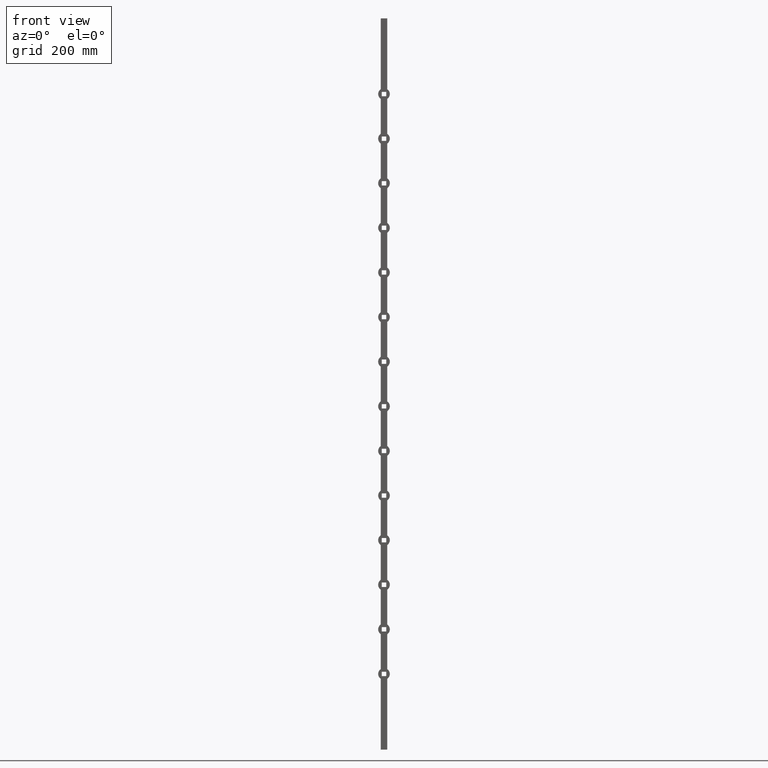
[diagram: clean part render]
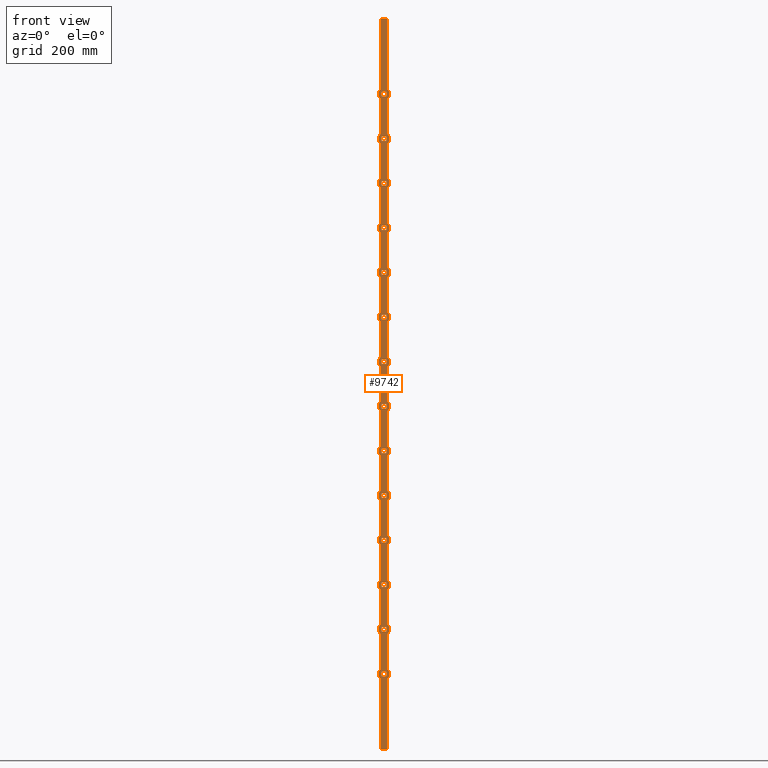
[diagram: same view with one face highlighted and labeled with its STEP entity id]
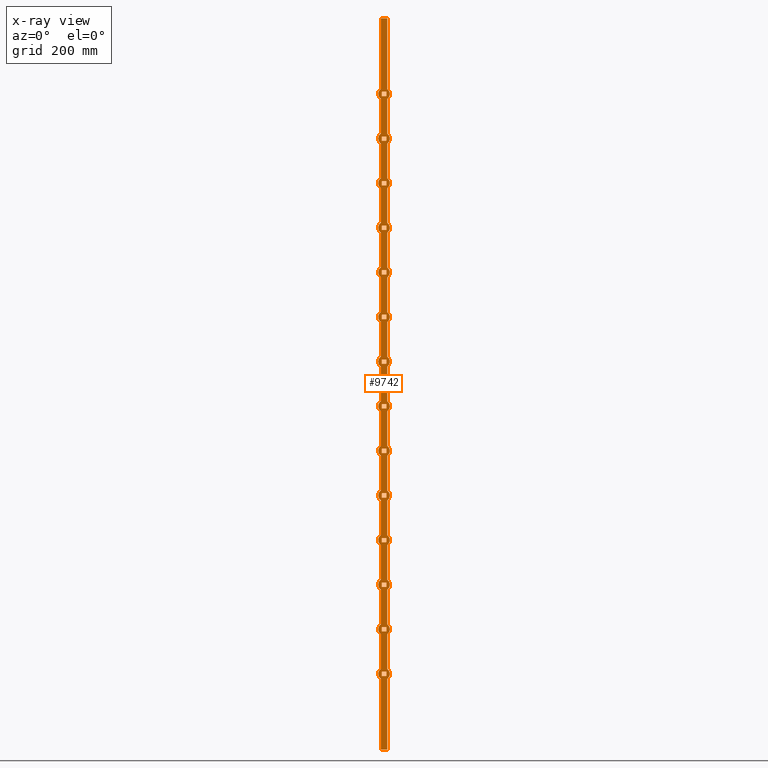
[diagram: x-ray of the same camera — body ghosted, the highlighted face saturated]
A machine part, front view. The second image highlights one B-rep face of the part: STEP entity #9742.
The next image is the same camera in x-ray: the body ghosted, the highlighted face saturated — about 0% of this face is hidden behind the body in this view.
In plain terms, the highlighted planar face has unit normal (0, 1, 0).
Its self-contained STEP definition (entity closure, byte-faithful):
#12 = CARTESIAN_POINT ( 'NONE',  ( -9.000000000000000000, -9.000000000000003553, -318.2287565553227751 ) ) ;
#26 = VERTEX_POINT ( 'NONE', #2920 ) ;
#44 = CARTESIAN_POINT ( 'NONE',  ( -9.000000000000000000, -9.000000000000001776, 1000.000000000000000 ) ) ;
#53 = ORIENTED_EDGE ( 'NONE', *, *, #3659, .T. ) ;
#57 = CARTESIAN_POINT ( 'NONE',  ( -6.000000000000004441, -9.000000000000003553, 189.0000000000000568 ) ) ;
#72 = VECTOR ( 'NONE', #9626, 1000.000000000000000 ) ;
#109 = LINE ( 'NONE', #11768, #13562 ) ;
#111 = CARTESIAN_POINT ( 'NONE',  ( -6.000000000000004441, -9.000000000000003553, -665.0000000000000000 ) ) ;
#132 = EDGE_CURVE ( 'NONE', #7963, #13052, #2563, .T. ) ;
#147 = CARTESIAN_POINT ( 'NONE',  ( 6.000000000000004441, -9.000000000000003553, -66.99999999999994316 ) ) ;
#149 = LINE ( 'NONE', #10964, #9063 ) ;
#154 = DIRECTION ( 'NONE',  ( 0.000000000000000000, 0.000000000000000000, 1.000000000000000000 ) ) ;
#159 = CARTESIAN_POINT ( 'NONE',  ( -8.999999999999996447, -9.000000000000000000, -535.7712434446771113 ) ) ;
#166 = VERTEX_POINT ( 'NONE', #9739 ) ;
#171 = VECTOR ( 'NONE', #10088, 1000.000000000000000 ) ;
#183 = DIRECTION ( 'NONE',  ( -0.000000000000000000, -0.000000000000000000, -1.000000000000000000 ) ) ;
#217 = CIRCLE ( 'NONE', #1911, 16.00000000000000000 ) ;
#264 = ORIENTED_EDGE ( 'NONE', *, *, #8427, .T. ) ;
#279 = CARTESIAN_POINT ( 'NONE',  ( 6.000000000000004441, -9.000000000000003553, 787.0000000000000000 ) ) ;
#297 = CARTESIAN_POINT ( 'NONE',  ( 0.000000000000000000, -9.000000000000000000, 61.00000000000005684 ) ) ;
#323 = VERTEX_POINT ( 'NONE', #1590 ) ;
#331 = VECTOR ( 'NONE', #3790, 1000.000000000000000 ) ;
#337 = VERTEX_POINT ( 'NONE', #5189 ) ;
#342 = VECTOR ( 'NONE', #4217, 1000.000000000000000 ) ;
#354 = EDGE_CURVE ( 'NONE', #1424, #6612, #8274, .T. ) ;
#361 = ORIENTED_EDGE ( 'NONE', *, *, #10410, .T. ) ;
#380 = ORIENTED_EDGE ( 'NONE', *, *, #1381, .F. ) ;
#389 = CARTESIAN_POINT ( 'NONE',  ( 8.999999999999996447, -9.000000000000000000, 779.7712434446771113 ) ) ;
#395 = CARTESIAN_POINT ( 'NONE',  ( -6.000000000000005329, -9.000000000000001776, -188.9999999999999432 ) ) ;
#407 = DIRECTION ( 'NONE',  ( -0.000000000000000000, -0.000000000000000000, -1.000000000000000000 ) ) ;
#427 = ORIENTED_EDGE ( 'NONE', *, *, #12549, .F. ) ;
#452 = EDGE_LOOP ( 'NONE', ( #3585, #10871, #5761, #8822 ) ) ;
#458 = ORIENTED_EDGE ( 'NONE', *, *, #13839, .F. ) ;
#462 = VECTOR ( 'NONE', #7149, 1000.000000000000000 ) ;
#486 = CARTESIAN_POINT ( 'NONE',  ( -9.000000000000000000, -9.000000000000001776, 1000.000000000000000 ) ) ;
#492 = VERTEX_POINT ( 'NONE', #9934 ) ;
#510 = CARTESIAN_POINT ( 'NONE',  ( -6.000000000000005329, -9.000000000000001776, -432.9999999999998295 ) ) ;
#516 = EDGE_CURVE ( 'NONE', #4567, #8469, #2050, .T. ) ;
#536 = DIRECTION ( 'NONE',  ( 1.445602896647337931E-16, 0.000000000000000000, 1.000000000000000000 ) ) ;
#540 = CIRCLE ( 'NONE', #5505, 16.00000000000001421 ) ;
#561 = VECTOR ( 'NONE', #4964, 1000.000000000000000 ) ;
#567 = VERTEX_POINT ( 'NONE', #4603 ) ;
#573 = VERTEX_POINT ( 'NONE', #6971 ) ;
#591 = VERTEX_POINT ( 'NONE', #11273 ) ;
#603 = ORIENTED_EDGE ( 'NONE', *, *, #8260, .F. ) ;
#607 = CARTESIAN_POINT ( 'NONE',  ( 0.000000000000000000, -9.000000000000000000, 183.0000000000000568 ) ) ;
#608 = CARTESIAN_POINT ( 'NONE',  ( 6.000000000000004441, -9.000000000000003553, 55.00000000000004974 ) ) ;
#620 = CIRCLE ( 'NONE', #5228, 16.00000000000000000 ) ;
#625 = LINE ( 'NONE', #2964, #11753 ) ;
#638 = LINE ( 'NONE', #10055, #9385 ) ;
#655 = ORIENTED_EDGE ( 'NONE', *, *, #10498, .F. ) ;
#664 = VECTOR ( 'NONE', #9157, 1000.000000000000000 ) ;
#692 = EDGE_LOOP ( 'NONE', ( #3812, #1298, #11087, #2124, #7381, #4243, #10791, #2254, #380, #10018, #13266, #6634, #13866, #6090, #11420, #12566, #2589, #3786, #13849, #13362, #11059, #1401, #5467, #12241, #6382, #13582, #12448, #5150, #7934, #12441, #9730, #603, #3141, #7122, #53, #11417, #6482, #13407, #3255, #4872, #4627, #427, #1592, #5649, #4272, #7295, #3964, #11944, #3863, #655, #4931, #458, #5558, #13477, #5144, #9509, #11697, #1589, #9151, #12786 ) ) ;
#701 = DIRECTION ( 'NONE',  ( -0.000000000000000000, -0.000000000000000000, -1.000000000000000000 ) ) ;
#702 = LINE ( 'NONE', #9812, #2548 ) ;
#722 = EDGE_CURVE ( 'NONE', #11607, #2750, #6754, .T. ) ;
#723 = DIRECTION ( 'NONE',  ( -1.445602896647337931E-16, -0.000000000000000000, -1.000000000000000000 ) ) ;
#725 = VERTEX_POINT ( 'NONE', #4844 ) ;
#806 = CARTESIAN_POINT ( 'NONE',  ( 6.000000000000006217, -9.000000000000003553, 67.00000000000005684 ) ) ;
#872 = EDGE_CURVE ( 'NONE', #13796, #11047, #7601, .T. ) ;
#881 = VERTEX_POINT ( 'NONE', #5112 ) ;
#894 = VERTEX_POINT ( 'NONE', #806 ) ;
#895 = VERTEX_POINT ( 'NONE', #8270 ) ;
#903 = CARTESIAN_POINT ( 'NONE',  ( -9.000000000000000000, -9.000000000000001776, 1000.000000000000000 ) ) ;
#909 = VERTEX_POINT ( 'NONE', #12531 ) ;
#910 = LINE ( 'NONE', #4851, #7312 ) ;
#941 = ORIENTED_EDGE ( 'NONE', *, *, #8967, .T. ) ;
#968 = ORIENTED_EDGE ( 'NONE', *, *, #13150, .T. ) ;
#990 = VERTEX_POINT ( 'NONE', #4134 ) ;
#999 = LINE ( 'NONE', #3225, #342 ) ;
#1019 = LINE ( 'NONE', #4586, #7077 ) ;
#1026 = ORIENTED_EDGE ( 'NONE', *, *, #4050, .T. ) ;
#1045 = EDGE_CURVE ( 'NONE', #1938, #11052, #11823, .T. ) ;
#1046 = CARTESIAN_POINT ( 'NONE',  ( 8.999999999999998224, -9.000000000000003553, -779.7712434446768839 ) ) ;
#1054 = VECTOR ( 'NONE', #11228, 1000.000000000000000 ) ;
#1069 = ORIENTED_EDGE ( 'NONE', *, *, #2753, .T. ) ;
#1083 = FACE_OUTER_BOUND ( 'NONE', #692, .T. ) ;
#1092 = EDGE_CURVE ( 'NONE', #9986, #2552, #702, .T. ) ;
#1095 = ORIENTED_EDGE ( 'NONE', *, *, #132, .T. ) ;
#1099 = VECTOR ( 'NONE', #5052, 1000.000000000000000 ) ;
#1121 = LINE ( 'NONE', #3878, #12271 ) ;
#1144 = CARTESIAN_POINT ( 'NONE',  ( 6.000000000000004441, -9.000000000000003553, -798.9999999999998863 ) ) ;
#1160 = EDGE_CURVE ( 'NONE', #13688, #2327, #11663, .T. ) ;
#1183 = LINE ( 'NONE', #9594, #4873 ) ;
#1203 = DIRECTION ( 'NONE',  ( 1.445602896647337931E-16, 0.000000000000000000, 1.000000000000000000 ) ) ;
#1287 = VECTOR ( 'NONE', #2820, 1000.000000000000000 ) ;
#1292 = CARTESIAN_POINT ( 'NONE',  ( 6.000000000000006217, -9.000000000000003553, 799.0000000000000000 ) ) ;
#1298 = ORIENTED_EDGE ( 'NONE', *, *, #9064, .F. ) ;
#1331 = LINE ( 'NONE', #3213, #9737 ) ;
#1381 = EDGE_CURVE ( 'NONE', #5562, #3705, #2511, .T. ) ;
#1389 = CARTESIAN_POINT ( 'NONE',  ( 8.999999999999998224, -9.000000000000003553, -291.7712434446768839 ) ) ;
#1401 = ORIENTED_EDGE ( 'NONE', *, *, #4573, .F. ) ;
#1424 = VERTEX_POINT ( 'NONE', #3766 ) ;
#1430 = CARTESIAN_POINT ( 'NONE',  ( 8.999999999999996447, -9.000000000000000000, -74.22875655532290295 ) ) ;
#1432 = CARTESIAN_POINT ( 'NONE',  ( 8.999999999999998224, -9.000000000000003553, -413.7712434446769976 ) ) ;
#1466 = DIRECTION ( 'NONE',  ( 0.000000000000000000, 1.000000000000000000, 0.000000000000000000 ) ) ;
#1487 = CARTESIAN_POINT ( 'NONE',  ( -8.999999999999996447, -9.000000000000000000, -169.7712434446769691 ) ) ;
#1508 = EDGE_CURVE ( 'NONE', #492, #13313, #999, .T. ) ;
#1514 = EDGE_CURVE ( 'NONE', #573, #8680, #7734, .T. ) ;
#1547 = ORIENTED_EDGE ( 'NONE', *, *, #8163, .T. ) ;
#1563 = VERTEX_POINT ( 'NONE', #5529 ) ;
#1576 = VERTEX_POINT ( 'NONE', #4435 ) ;
#1589 = ORIENTED_EDGE ( 'NONE', *, *, #7126, .F. ) ;
#1590 = CARTESIAN_POINT ( 'NONE',  ( 6.000000000000006217, -9.000000000000003553, -543.0000000000001137 ) ) ;
#1592 = ORIENTED_EDGE ( 'NONE', *, *, #12785, .T. ) ;
#1615 = VERTEX_POINT ( 'NONE', #6658 ) ;
#1661 = VECTOR ( 'NONE', #12374, 1000.000000000000000 ) ;
#1681 = EDGE_CURVE ( 'NONE', #8268, #3030, #5519, .T. ) ;
#1682 = DIRECTION ( 'NONE',  ( 0.000000000000000000, 0.000000000000000000, 1.000000000000000000 ) ) ;
#1735 = VERTEX_POINT ( 'NONE', #8956 ) ;
#1770 = EDGE_CURVE ( 'NONE', #12027, #11978, #7226, .T. ) ;
#1799 = LINE ( 'NONE', #3758, #8368 ) ;
#1812 = VERTEX_POINT ( 'NONE', #13467 ) ;
#1830 = CARTESIAN_POINT ( 'NONE',  ( -6.000000000000005329, -9.000000000000001776, 299.0000000000000568 ) ) ;
#1844 = LINE ( 'NONE', #5877, #3680 ) ;
#1862 = VECTOR ( 'NONE', #2171, 1000.000000000000000 ) ;
#1880 = DIRECTION ( 'NONE',  ( -1.445602896647337931E-16, -0.000000000000000000, -1.000000000000000000 ) ) ;
#1882 = ORIENTED_EDGE ( 'NONE', *, *, #6478, .T. ) ;
#1884 = EDGE_CURVE ( 'NONE', #3030, #7963, #4345, .T. ) ;
#1890 = CARTESIAN_POINT ( 'NONE',  ( 8.999999999999996447, -9.000000000000000000, -684.2287565553228887 ) ) ;
#1905 = DIRECTION ( 'NONE',  ( -0.000000000000000000, -0.000000000000000000, -1.000000000000000000 ) ) ;
#1909 = VERTEX_POINT ( 'NONE', #5240 ) ;
#1911 = AXIS2_PLACEMENT_3D ( 'NONE', #9798, #10802, #11988 ) ;
#1912 = CARTESIAN_POINT ( 'NONE',  ( 6.000000000000004441, -9.000000000000003553, 177.0000000000000568 ) ) ;
#1931 = EDGE_CURVE ( 'NONE', #8497, #6612, #2173, .T. ) ;
#1938 = VERTEX_POINT ( 'NONE', #3129 ) ;
#1946 = EDGE_CURVE ( 'NONE', #9674, #337, #10082, .T. ) ;
#1968 = ORIENTED_EDGE ( 'NONE', *, *, #5708, .T. ) ;
#2005 = CARTESIAN_POINT ( 'NONE',  ( 0.000000000000000000, -9.000000000000000000, 183.0000000000000568 ) ) ;
#2014 = EDGE_CURVE ( 'NONE', #6833, #4774, #1331, .T. ) ;
#2023 = VECTOR ( 'NONE', #11911, 1000.000000000000000 ) ;
#2026 = CARTESIAN_POINT ( 'NONE',  ( 6.000000000000004441, -9.000000000000003553, 787.0000000000000000 ) ) ;
#2045 = CARTESIAN_POINT ( 'NONE',  ( 0.000000000000000000, -9.000000000000000000, -426.9999999999999432 ) ) ;
#2050 = LINE ( 'NONE', #3492, #5570 ) ;
#2064 = EDGE_CURVE ( 'NONE', #9342, #7689, #2513, .T. ) ;
#2083 = VERTEX_POINT ( 'NONE', #9993 ) ;
#2089 = AXIS2_PLACEMENT_3D ( 'NONE', #11521, #13573, #10422 ) ;
#2100 = EDGE_LOOP ( 'NONE', ( #968, #13731, #2913, #5254 ) ) ;
#2120 = EDGE_CURVE ( 'NONE', #1615, #5892, #9392, .T. ) ;
#2123 = LINE ( 'NONE', #7225, #13537 ) ;
#2124 = ORIENTED_EDGE ( 'NONE', *, *, #11989, .T. ) ;
#2127 = LINE ( 'NONE', #11435, #4625 ) ;
#2128 = VERTEX_POINT ( 'NONE', #4521 ) ;
#2134 = CARTESIAN_POINT ( 'NONE',  ( -6.000000000000006217, -9.000000000000003553, -188.9999999999999432 ) ) ;
#2165 = LINE ( 'NONE', #6450, #6283 ) ;
#2171 = DIRECTION ( 'NONE',  ( 1.445602896647337931E-16, 0.000000000000000000, 1.000000000000000000 ) ) ;
#2173 = CIRCLE ( 'NONE', #11983, 16.00000000000001421 ) ;
#2174 = DIRECTION ( 'NONE',  ( 0.000000000000000000, 0.000000000000000000, 1.000000000000000000 ) ) ;
#2176 = CIRCLE ( 'NONE', #11640, 16.00000000000001421 ) ;
#2228 = EDGE_CURVE ( 'NONE', #10856, #4567, #3669, .T. ) ;
#2249 = EDGE_CURVE ( 'NONE', #894, #492, #10752, .T. ) ;
#2254 = ORIENTED_EDGE ( 'NONE', *, *, #6784, .F. ) ;
#2259 = ORIENTED_EDGE ( 'NONE', *, *, #7593, .T. ) ;
#2279 = LINE ( 'NONE', #5194, #7328 ) ;
#2288 = DIRECTION ( 'NONE',  ( 1.445602896647337931E-16, 0.000000000000000000, 1.000000000000000000 ) ) ;
#2327 = VERTEX_POINT ( 'NONE', #1830 ) ;
#2373 = DIRECTION ( 'NONE',  ( -1.445602896647337931E-16, -0.000000000000000000, -1.000000000000000000 ) ) ;
#2392 = DIRECTION ( 'NONE',  ( -1.000000000000000000, -0.000000000000000000, -0.000000000000000000 ) ) ;
#2399 = DIRECTION ( 'NONE',  ( 1.000000000000000000, 0.000000000000000000, 0.000000000000000000 ) ) ;
#2433 = AXIS2_PLACEMENT_3D ( 'NONE', #5390, #5565, #3854 ) ;
#2484 = DIRECTION ( 'NONE',  ( 0.000000000000000000, 0.000000000000000000, 1.000000000000000000 ) ) ;
#2489 = CARTESIAN_POINT ( 'NONE',  ( 8.999999999999998224, -9.000000000000003553, 440.2287565553230024 ) ) ;
#2497 = CARTESIAN_POINT ( 'NONE',  ( 0.000000000000000000, -9.000000000000000000, -670.9999999999998863 ) ) ;
#2511 = LINE ( 'NONE', #13380, #171 ) ;
#2513 = LINE ( 'NONE', #6511, #13273 ) ;
#2538 = VERTEX_POINT ( 'NONE', #10702 ) ;
#2548 = VECTOR ( 'NONE', #3279, 1000.000000000000000 ) ;
#2552 = VERTEX_POINT ( 'NONE', #6352 ) ;
#2563 = LINE ( 'NONE', #2134, #11159 ) ;
#2573 = CARTESIAN_POINT ( 'NONE',  ( -9.000000000000000000, -9.000000000000003553, -562.2287565553230024 ) ) ;
#2588 = LINE ( 'NONE', #11635, #4761 ) ;
#2589 = ORIENTED_EDGE ( 'NONE', *, *, #13104, .F. ) ;
#2604 = CARTESIAN_POINT ( 'NONE',  ( 0.000000000000000000, -9.000000000000000000, -670.9999999999998863 ) ) ;
#2665 = EDGE_CURVE ( 'NONE', #3262, #909, #4502, .T. ) ;
#2672 = DIRECTION ( 'NONE',  ( 0.000000000000000000, 0.000000000000000000, 1.000000000000000000 ) ) ;
#2677 = CARTESIAN_POINT ( 'NONE',  ( -9.000000000000000000, -9.000000000000001776, 1000.000000000000000 ) ) ;
#2719 = AXIS2_PLACEMENT_3D ( 'NONE', #8087, #4877, #5952 ) ;
#2750 = VERTEX_POINT ( 'NONE', #1432 ) ;
#2753 = EDGE_CURVE ( 'NONE', #6928, #1615, #9903, .T. ) ;
#2766 = FACE_BOUND ( 'NONE', #10140, .T. ) ;
#2779 = ORIENTED_EDGE ( 'NONE', *, *, #12472, .T. ) ;
#2781 = EDGE_CURVE ( 'NONE', #9674, #1909, #2176, .T. ) ;
#2800 = DIRECTION ( 'NONE',  ( -1.000000000000000000, -0.000000000000000000, -0.000000000000000000 ) ) ;
#2813 = CARTESIAN_POINT ( 'NONE',  ( -6.000000000000005329, -9.000000000000001776, -798.9999999999998863 ) ) ;
#2820 = DIRECTION ( 'NONE',  ( 1.445602896647337931E-16, 0.000000000000000000, 1.000000000000000000 ) ) ;
#2838 = ORIENTED_EDGE ( 'NONE', *, *, #13475, .T. ) ;
#2865 = ORIENTED_EDGE ( 'NONE', *, *, #1884, .T. ) ;
#2867 = EDGE_CURVE ( 'NONE', #4507, #9986, #1844, .T. ) ;
#2887 = CARTESIAN_POINT ( 'NONE',  ( -6.000000000000005329, -9.000000000000001776, 421.0000000000000568 ) ) ;
#2905 = CARTESIAN_POINT ( 'NONE',  ( 6.000000000000004441, -9.000000000000003553, -66.99999999999994316 ) ) ;
#2910 = VERTEX_POINT ( 'NONE', #3761 ) ;
#2913 = ORIENTED_EDGE ( 'NONE', *, *, #3792, .T. ) ;
#2920 = CARTESIAN_POINT ( 'NONE',  ( 8.999999999999998224, -9.000000000000003553, 196.2287565553230024 ) ) ;
#2953 = LINE ( 'NONE', #7522, #12255 ) ;
#2964 = CARTESIAN_POINT ( 'NONE',  ( -6.000000000000006217, -9.000000000000003553, 787.0000000000000000 ) ) ;
#2977 = CARTESIAN_POINT ( 'NONE',  ( 8.999999999999998224, -9.000000000000001776, 1000.000000000000000 ) ) ;
#3028 = EDGE_CURVE ( 'NONE', #725, #6343, #5508, .T. ) ;
#3030 = VERTEX_POINT ( 'NONE', #7258 ) ;
#3047 = VERTEX_POINT ( 'NONE', #11827 ) ;
#3071 = LINE ( 'NONE', #6139, #561 ) ;
#3091 = VECTOR ( 'NONE', #2373, 1000.000000000000000 ) ;
#3099 = CARTESIAN_POINT ( 'NONE',  ( -6.000000000000006217, -9.000000000000003553, 55.00000000000004974 ) ) ;
#3101 = ORIENTED_EDGE ( 'NONE', *, *, #1045, .T. ) ;
#3102 = LINE ( 'NONE', #12814, #6812 ) ;
#3108 = EDGE_LOOP ( 'NONE', ( #1547, #2259, #12232, #12761 ) ) ;
#3121 = CIRCLE ( 'NONE', #7217, 16.00000000000001421 ) ;
#3129 = CARTESIAN_POINT ( 'NONE',  ( 6.000000000000006217, -9.000000000000003553, -54.99999999999993605 ) ) ;
#3130 = VECTOR ( 'NONE', #1880, 1000.000000000000000 ) ;
#3141 = ORIENTED_EDGE ( 'NONE', *, *, #13366, .F. ) ;
#3161 = VECTOR ( 'NONE', #9345, 1000.000000000000000 ) ;
#3164 = CARTESIAN_POINT ( 'NONE',  ( -6.000000000000006217, -9.000000000000003553, 299.0000000000000568 ) ) ;
#3165 = LINE ( 'NONE', #7913, #11259 ) ;
#3198 = EDGE_CURVE ( 'NONE', #7247, #2128, #149, .T. ) ;
#3213 = CARTESIAN_POINT ( 'NONE',  ( -6.000000000000006217, -9.000000000000003553, 177.0000000000000568 ) ) ;
#3225 = CARTESIAN_POINT ( 'NONE',  ( -6.000000000000006217, -9.000000000000003553, 55.00000000000004974 ) ) ;
#3235 = CARTESIAN_POINT ( 'NONE',  ( 6.000000000000004441, -9.000000000000003553, -677.0000000000000000 ) ) ;
#3251 = AXIS2_PLACEMENT_3D ( 'NONE', #10473, #7238, #10328 ) ;
#3254 = LINE ( 'NONE', #12039, #13525 ) ;
#3255 = ORIENTED_EDGE ( 'NONE', *, *, #11645, .T. ) ;
#3260 = EDGE_CURVE ( 'NONE', #7155, #12413, #3165, .T. ) ;
#3262 = VERTEX_POINT ( 'NONE', #389 ) ;
#3263 = FACE_BOUND ( 'NONE', #3108, .T. ) ;
#3279 = DIRECTION ( 'NONE',  ( 1.000000000000000000, 0.000000000000000000, 0.000000000000000000 ) ) ;
#3290 = CARTESIAN_POINT ( 'NONE',  ( 6.000000000000006217, -9.000000000000003553, 433.0000000000000568 ) ) ;
#3298 = DIRECTION ( 'NONE',  ( 0.000000000000000000, 0.000000000000000000, 1.000000000000000000 ) ) ;
#3299 = CARTESIAN_POINT ( 'NONE',  ( 6.000000000000006217, -9.000000000000003553, 677.0000000000000000 ) ) ;
#3394 = ORIENTED_EDGE ( 'NONE', *, *, #516, .T. ) ;
#3398 = CARTESIAN_POINT ( 'NONE',  ( -6.000000000000006217, -9.000000000000003553, -432.9999999999998295 ) ) ;
#3399 = CARTESIAN_POINT ( 'NONE',  ( -9.000000000000000000, -9.000000000000003553, -684.2287565553228887 ) ) ;
#3430 = DIRECTION ( 'NONE',  ( 1.000000000000000000, 0.000000000000000000, 0.000000000000000000 ) ) ;
#3492 = CARTESIAN_POINT ( 'NONE',  ( -6.000000000000006217, -9.000000000000003553, -677.0000000000000000 ) ) ;
#3563 = DIRECTION ( 'NONE',  ( 0.000000000000000000, 0.000000000000000000, 1.000000000000000000 ) ) ;
#3585 = ORIENTED_EDGE ( 'NONE', *, *, #10430, .T. ) ;
#3590 = DIRECTION ( 'NONE',  ( 0.000000000000000000, 1.000000000000000000, 0.000000000000000000 ) ) ;
#3612 = CARTESIAN_POINT ( 'NONE',  ( -9.000000000000000000, -9.000000000000003553, 169.7712434446770828 ) ) ;
#3638 = DIRECTION ( 'NONE',  ( 0.000000000000000000, 1.000000000000000000, 0.000000000000000000 ) ) ;
#3640 = EDGE_CURVE ( 'NONE', #567, #591, #638, .T. ) ;
#3649 = DIRECTION ( 'NONE',  ( -1.000000000000000000, -0.000000000000000000, -0.000000000000000000 ) ) ;
#3655 = LINE ( 'NONE', #7198, #9379 ) ;
#3659 = EDGE_CURVE ( 'NONE', #3047, #1909, #11767, .T. ) ;
#3669 = LINE ( 'NONE', #11201, #664 ) ;
#3680 = VECTOR ( 'NONE', #536, 1000.000000000000000 ) ;
#3705 = VERTEX_POINT ( 'NONE', #10756 ) ;
#3706 = CARTESIAN_POINT ( 'NONE',  ( 6.000000000000004441, -9.000000000000003553, 421.0000000000000568 ) ) ;
#3725 = CARTESIAN_POINT ( 'NONE',  ( -6.000000000000006217, -9.000000000000003553, -432.9999999999998295 ) ) ;
#3742 = VERTEX_POINT ( 'NONE', #4375 ) ;
#3758 = CARTESIAN_POINT ( 'NONE',  ( -6.000000000000004441, -9.000000000000003553, -298.9999999999998295 ) ) ;
#3761 = CARTESIAN_POINT ( 'NONE',  ( 6.000000000000006217, -9.000000000000003553, -298.9999999999998295 ) ) ;
#3765 = CARTESIAN_POINT ( 'NONE',  ( -6.000000000000004441, -9.000000000000003553, -298.9999999999998295 ) ) ;
#3766 = CARTESIAN_POINT ( 'NONE',  ( -9.000000000000000000, -9.000000000000003553, -196.2287565553228887 ) ) ;
#3772 = FACE_BOUND ( 'NONE', #2100, .T. ) ;
#3786 = ORIENTED_EDGE ( 'NONE', *, *, #7393, .F. ) ;
#3790 = DIRECTION ( 'NONE',  ( -1.445602896647337931E-16, -0.000000000000000000, -1.000000000000000000 ) ) ;
#3792 = EDGE_CURVE ( 'NONE', #8510, #6298, #12436, .T. ) ;
#3797 = CARTESIAN_POINT ( 'NONE',  ( 8.999999999999998224, -9.000000000000003553, 806.2287565553230024 ) ) ;
#3802 = CIRCLE ( 'NONE', #2089, 16.00000000000001421 ) ;
#3810 = CARTESIAN_POINT ( 'NONE',  ( 8.999999999999998224, -9.000000000000001776, 1000.000000000000000 ) ) ;
#3812 = ORIENTED_EDGE ( 'NONE', *, *, #6724, .T. ) ;
#3833 = EDGE_CURVE ( 'NONE', #5285, #725, #12770, .T. ) ;
#3849 = DIRECTION ( 'NONE',  ( -1.000000000000000000, -0.000000000000000000, -0.000000000000000000 ) ) ;
#3851 = DIRECTION ( 'NONE',  ( -0.000000000000000000, -0.000000000000000000, -1.000000000000000000 ) ) ;
#3854 = DIRECTION ( 'NONE',  ( 0.000000000000000000, 0.000000000000000000, 1.000000000000000000 ) ) ;
#3863 = ORIENTED_EDGE ( 'NONE', *, *, #3640, .T. ) ;
#3878 = CARTESIAN_POINT ( 'NONE',  ( -9.000000000000000000, -9.000000000000001776, 1000.000000000000000 ) ) ;
#3949 = LINE ( 'NONE', #12800, #6130 ) ;
#3964 = ORIENTED_EDGE ( 'NONE', *, *, #6252, .T. ) ;
#3984 = ORIENTED_EDGE ( 'NONE', *, *, #4769, .T. ) ;
#3985 = EDGE_CURVE ( 'NONE', #6847, #2910, #1799, .T. ) ;
#4037 = LINE ( 'NONE', #3099, #1862 ) ;
#4046 = CARTESIAN_POINT ( 'NONE',  ( -8.999999999999996447, -9.000000000000000000, -779.7712434446768839 ) ) ;
#4050 = EDGE_CURVE ( 'NONE', #2538, #4507, #8531, .T. ) ;
#4053 = CARTESIAN_POINT ( 'NONE',  ( -9.000000000000000000, -9.000000000000003553, 291.7712434446771113 ) ) ;
#4066 = DIRECTION ( 'NONE',  ( 0.000000000000000000, 0.000000000000000000, 1.000000000000000000 ) ) ;
#4082 = DIRECTION ( 'NONE',  ( -0.000000000000000000, -0.000000000000000000, -1.000000000000000000 ) ) ;
#4111 = EDGE_LOOP ( 'NONE', ( #8161, #2865, #1095, #8546 ) ) ;
#4113 = FACE_BOUND ( 'NONE', #6939, .T. ) ;
#4118 = EDGE_CURVE ( 'NONE', #3047, #8628, #10902, .T. ) ;
#4119 = LINE ( 'NONE', #9292, #1099 ) ;
#4128 = CARTESIAN_POINT ( 'NONE',  ( 6.000000000000004441, -9.000000000000003553, 421.0000000000000568 ) ) ;
#4130 = CARTESIAN_POINT ( 'NONE',  ( 0.000000000000000000, -9.000000000000000000, -182.9999999999999432 ) ) ;
#4134 = CARTESIAN_POINT ( 'NONE',  ( -6.000000000000005329, -9.000000000000001776, -66.99999999999994316 ) ) ;
#4142 = EDGE_CURVE ( 'NONE', #9040, #12020, #625, .T. ) ;
#4143 = CIRCLE ( 'NONE', #10551, 16.00000000000001421 ) ;
#4171 = DIRECTION ( 'NONE',  ( -0.000000000000000000, -0.000000000000000000, -1.000000000000000000 ) ) ;
#4175 = ORIENTED_EDGE ( 'NONE', *, *, #12847, .T. ) ;
#4177 = CARTESIAN_POINT ( 'NONE',  ( 8.999999999999998224, -9.000000000000003553, 318.2287565553230024 ) ) ;
#4183 = VECTOR ( 'NONE', #5653, 1000.000000000000000 ) ;
#4217 = DIRECTION ( 'NONE',  ( -1.000000000000000000, -0.000000000000000000, -0.000000000000000000 ) ) ;
#4229 = AXIS2_PLACEMENT_3D ( 'NONE', #6528, #13034, #154 ) ;
#4230 = DIRECTION ( 'NONE',  ( 0.000000000000000000, 1.000000000000000000, 0.000000000000000000 ) ) ;
#4243 = ORIENTED_EDGE ( 'NONE', *, *, #5038, .F. ) ;
#4247 = EDGE_LOOP ( 'NONE', ( #361, #9647, #1069, #10615 ) ) ;
#4263 = DIRECTION ( 'NONE',  ( -0.000000000000000000, -0.000000000000000000, -1.000000000000000000 ) ) ;
#4272 = ORIENTED_EDGE ( 'NONE', *, *, #2064, .T. ) ;
#4277 = CARTESIAN_POINT ( 'NONE',  ( -6.000000000000004441, -9.000000000000003553, 799.0000000000000000 ) ) ;
#4298 = DIRECTION ( 'NONE',  ( 0.000000000000000000, 1.000000000000000000, 0.000000000000000000 ) ) ;
#4317 = VERTEX_POINT ( 'NONE', #5313 ) ;
#4332 = EDGE_CURVE ( 'NONE', #12873, #6331, #7685, .T. ) ;
#4338 = DIRECTION ( 'NONE',  ( 1.445602896647337931E-16, 0.000000000000000000, 1.000000000000000000 ) ) ;
#4345 = LINE ( 'NONE', #10117, #12958 ) ;
#4349 = CARTESIAN_POINT ( 'NONE',  ( -9.000000000000000000, -9.000000000000001776, 1000.000000000000000 ) ) ;
#4356 = EDGE_CURVE ( 'NONE', #4774, #5627, #5970, .T. ) ;
#4375 = CARTESIAN_POINT ( 'NONE',  ( 8.999999999999998224, -9.000000000000003553, -47.77124344467699046 ) ) ;
#4433 = DIRECTION ( 'NONE',  ( 1.000000000000000000, 0.000000000000000000, 0.000000000000000000 ) ) ;
#4435 = CARTESIAN_POINT ( 'NONE',  ( 8.999999999999996447, -9.000000000000000000, 535.7712434446771113 ) ) ;
#4438 = ORIENTED_EDGE ( 'NONE', *, *, #3260, .T. ) ;
#4444 = CARTESIAN_POINT ( 'NONE',  ( 8.999999999999998224, -9.000000000000003553, -169.7712434446769691 ) ) ;
#4456 = EDGE_CURVE ( 'NONE', #567, #6910, #9865, .T. ) ;
#4457 = LINE ( 'NONE', #5813, #7165 ) ;
#4466 = VERTEX_POINT ( 'NONE', #5815 ) ;
#4493 = VERTEX_POINT ( 'NONE', #4905 ) ;
#4502 = LINE ( 'NONE', #4513, #7047 ) ;
#4507 = VERTEX_POINT ( 'NONE', #2813 ) ;
#4513 = CARTESIAN_POINT ( 'NONE',  ( 8.999999999999998224, -9.000000000000001776, 1000.000000000000000 ) ) ;
#4521 = CARTESIAN_POINT ( 'NONE',  ( -6.000000000000004441, -9.000000000000003553, 555.0000000000000000 ) ) ;
#4535 = EDGE_CURVE ( 'NONE', #13656, #4493, #1121, .T. ) ;
#4540 = ORIENTED_EDGE ( 'NONE', *, *, #4142, .T. ) ;
#4551 = EDGE_CURVE ( 'NONE', #11047, #5562, #3121, .T. ) ;
#4559 = DIRECTION ( 'NONE',  ( -0.000000000000000000, -0.000000000000000000, -1.000000000000000000 ) ) ;
#4567 = VERTEX_POINT ( 'NONE', #6948 ) ;
#4573 = EDGE_CURVE ( 'NONE', #26, #13251, #4143, .T. ) ;
#4586 = CARTESIAN_POINT ( 'NONE',  ( -6.000000000000004441, -9.000000000000003553, -543.0000000000001137 ) ) ;
#4603 = CARTESIAN_POINT ( 'NONE',  ( -9.000000000000000000, -9.000000000000003553, 47.77124344467709705 ) ) ;
#4625 = VECTOR ( 'NONE', #2800, 1000.000000000000000 ) ;
#4627 = ORIENTED_EDGE ( 'NONE', *, *, #10424, .T. ) ;
#4666 = EDGE_CURVE ( 'NONE', #13352, #12348, #2953, .T. ) ;
#4669 = CARTESIAN_POINT ( 'NONE',  ( -6.000000000000006217, -9.000000000000003553, -66.99999999999994316 ) ) ;
#4671 = DIRECTION ( 'NONE',  ( -0.000000000000000000, -0.000000000000000000, -1.000000000000000000 ) ) ;
#4711 = CARTESIAN_POINT ( 'NONE',  ( -6.000000000000006217, -9.000000000000003553, 665.0000000000000000 ) ) ;
#4756 = CARTESIAN_POINT ( 'NONE',  ( 8.999999999999996447, -9.000000000000000000, -562.2287565553230024 ) ) ;
#4761 = VECTOR ( 'NONE', #7432, 1000.000000000000000 ) ;
#4769 = EDGE_CURVE ( 'NONE', #7726, #4317, #109, .T. ) ;
#4774 = VERTEX_POINT ( 'NONE', #6404 ) ;
#4782 = VERTEX_POINT ( 'NONE', #10954 ) ;
#4816 = VECTOR ( 'NONE', #701, 1000.000000000000000 ) ;
#4818 = VECTOR ( 'NONE', #4973, 1000.000000000000000 ) ;
#4844 = CARTESIAN_POINT ( 'NONE',  ( 8.999999999999996447, -9.000000000000000000, 413.7712434446771113 ) ) ;
#4851 = CARTESIAN_POINT ( 'NONE',  ( -6.000000000000006217, -9.000000000000003553, 787.0000000000000000 ) ) ;
#4872 = ORIENTED_EDGE ( 'NONE', *, *, #5845, .F. ) ;
#4873 = VECTOR ( 'NONE', #13837, 1000.000000000000000 ) ;
#4877 = DIRECTION ( 'NONE',  ( 0.000000000000000000, 1.000000000000000000, 0.000000000000000000 ) ) ;
#4905 = CARTESIAN_POINT ( 'NONE',  ( -9.000000000000000000, -9.000000000000001776, -1000.000000000000000 ) ) ;
#4924 = CARTESIAN_POINT ( 'NONE',  ( 8.999999999999998224, -9.000000000000001776, 1000.000000000000000 ) ) ;
#4927 = CARTESIAN_POINT ( 'NONE',  ( 0.000000000000000000, -9.000000000000000000, 793.0000000000000000 ) ) ;
#4931 = ORIENTED_EDGE ( 'NONE', *, *, #8925, .T. ) ;
#4939 = FACE_BOUND ( 'NONE', #4247, .T. ) ;
#4950 = EDGE_CURVE ( 'NONE', #13381, #8510, #2127, .T. ) ;
#4964 = DIRECTION ( 'NONE',  ( -0.000000000000000000, -0.000000000000000000, -1.000000000000000000 ) ) ;
#4972 = AXIS2_PLACEMENT_3D ( 'NONE', #5258, #7400, #8561 ) ;
#4973 = DIRECTION ( 'NONE',  ( 1.000000000000000000, 0.000000000000000000, 0.000000000000000000 ) ) ;
#4984 = CARTESIAN_POINT ( 'NONE',  ( -6.000000000000005329, -9.000000000000001776, 177.0000000000000568 ) ) ;
#5035 = DIRECTION ( 'NONE',  ( -0.000000000000000000, -0.000000000000000000, -1.000000000000000000 ) ) ;
#5038 = EDGE_CURVE ( 'NONE', #12348, #13608, #12146, .T. ) ;
#5043 = CARTESIAN_POINT ( 'NONE',  ( -8.999999999999996447, -9.000000000000000000, -291.7712434446768839 ) ) ;
#5052 = DIRECTION ( 'NONE',  ( 1.000000000000000000, 0.000000000000000000, 0.000000000000000000 ) ) ;
#5063 = DIRECTION ( 'NONE',  ( -0.000000000000000000, -0.000000000000000000, -1.000000000000000000 ) ) ;
#5069 = CARTESIAN_POINT ( 'NONE',  ( -9.000000000000000000, -9.000000000000001776, 1000.000000000000000 ) ) ;
#5075 = ORIENTED_EDGE ( 'NONE', *, *, #10970, .T. ) ;
#5112 = CARTESIAN_POINT ( 'NONE',  ( -6.000000000000004441, -9.000000000000003553, -54.99999999999993605 ) ) ;
#5121 = CARTESIAN_POINT ( 'NONE',  ( -6.000000000000004441, -9.000000000000003553, 67.00000000000005684 ) ) ;
#5141 = LINE ( 'NONE', #6038, #12752 ) ;
#5144 = ORIENTED_EDGE ( 'NONE', *, *, #10400, .T. ) ;
#5150 = ORIENTED_EDGE ( 'NONE', *, *, #10679, .F. ) ;
#5189 = CARTESIAN_POINT ( 'NONE',  ( -8.999999999999996447, -9.000000000000000000, 684.2287565553230024 ) ) ;
#5194 = CARTESIAN_POINT ( 'NONE',  ( -9.000000000000000000, -9.000000000000001776, 1000.000000000000000 ) ) ;
#5207 = LINE ( 'NONE', #4349, #2023 ) ;
#5228 = AXIS2_PLACEMENT_3D ( 'NONE', #10335, #11486, #12483 ) ;
#5229 = ORIENTED_EDGE ( 'NONE', *, *, #2867, .T. ) ;
#5233 = LINE ( 'NONE', #10413, #5563 ) ;
#5240 = CARTESIAN_POINT ( 'NONE',  ( -8.999999999999996447, -9.000000000000000000, 806.2287565553230024 ) ) ;
#5254 = ORIENTED_EDGE ( 'NONE', *, *, #8535, .T. ) ;
#5258 = CARTESIAN_POINT ( 'NONE',  ( 0.000000000000000000, -9.000000000000000000, 671.0000000000000000 ) ) ;
#5261 = CIRCLE ( 'NONE', #7959, 16.00000000000001421 ) ;
#5279 = VERTEX_POINT ( 'NONE', #2573 ) ;
#5285 = VERTEX_POINT ( 'NONE', #2489 ) ;
#5305 = DIRECTION ( 'NONE',  ( 0.000000000000000000, 1.000000000000000000, 0.000000000000000000 ) ) ;
#5313 = CARTESIAN_POINT ( 'NONE',  ( 6.000000000000006217, -9.000000000000003553, 311.0000000000000568 ) ) ;
#5329 = CARTESIAN_POINT ( 'NONE',  ( -8.999999999999996447, -9.000000000000000000, 196.2287565553230024 ) ) ;
#5345 = CARTESIAN_POINT ( 'NONE',  ( 0.000000000000000000, -9.000000000000000000, -304.9999999999998295 ) ) ;
#5390 = CARTESIAN_POINT ( 'NONE',  ( 0.000000000000000000, -9.000000000000000000, 427.0000000000000568 ) ) ;
#5409 = CIRCLE ( 'NONE', #11839, 16.00000000000001421 ) ;
#5411 = EDGE_CURVE ( 'NONE', #5627, #9671, #12306, .T. ) ;
#5439 = DIRECTION ( 'NONE',  ( 0.000000000000000000, 0.000000000000000000, 1.000000000000000000 ) ) ;
#5442 = EDGE_CURVE ( 'NONE', #10547, #1563, #7855, .T. ) ;
#5465 = VECTOR ( 'NONE', #11168, 1000.000000000000000 ) ;
#5467 = ORIENTED_EDGE ( 'NONE', *, *, #13310, .F. ) ;
#5473 = EDGE_CURVE ( 'NONE', #1735, #12027, #2165, .T. ) ;
#5479 = CARTESIAN_POINT ( 'NONE',  ( 0.000000000000000000, -9.000000000000000000, 305.0000000000000568 ) ) ;
#5505 = AXIS2_PLACEMENT_3D ( 'NONE', #9009, #3590, #9990 ) ;
#5508 = LINE ( 'NONE', #6157, #6872 ) ;
#5517 = CARTESIAN_POINT ( 'NONE',  ( -8.999999999999996447, -9.000000000000000000, 318.2287565553230024 ) ) ;
#5519 = LINE ( 'NONE', #9810, #10417 ) ;
#5529 = CARTESIAN_POINT ( 'NONE',  ( 8.999999999999998224, -9.000000000000000000, 47.77124344467708994 ) ) ;
#5534 = EDGE_CURVE ( 'NONE', #11978, #1812, #13707, .T. ) ;
#5558 = ORIENTED_EDGE ( 'NONE', *, *, #354, .T. ) ;
#5562 = VERTEX_POINT ( 'NONE', #4756 ) ;
#5563 = VECTOR ( 'NONE', #13609, 1000.000000000000000 ) ;
#5565 = DIRECTION ( 'NONE',  ( 0.000000000000000000, 1.000000000000000000, 0.000000000000000000 ) ) ;
#5566 = DIRECTION ( 'NONE',  ( 0.000000000000000000, 0.000000000000000000, 1.000000000000000000 ) ) ;
#5570 = VECTOR ( 'NONE', #11030, 1000.000000000000000 ) ;
#5591 = LINE ( 'NONE', #10278, #12537 ) ;
#5620 = FACE_BOUND ( 'NONE', #7856, .T. ) ;
#5627 = VERTEX_POINT ( 'NONE', #5745 ) ;
#5649 = ORIENTED_EDGE ( 'NONE', *, *, #6341, .F. ) ;
#5653 = DIRECTION ( 'NONE',  ( -1.000000000000000000, -0.000000000000000000, -0.000000000000000000 ) ) ;
#5708 = EDGE_CURVE ( 'NONE', #12020, #7155, #910, .T. ) ;
#5722 = EDGE_CURVE ( 'NONE', #1576, #5285, #8808, .T. ) ;
#5735 = VECTOR ( 'NONE', #13120, 1000.000000000000000 ) ;
#5742 = VECTOR ( 'NONE', #11695, 1000.000000000000000 ) ;
#5745 = CARTESIAN_POINT ( 'NONE',  ( 6.000000000000006217, -9.000000000000003553, 189.0000000000000568 ) ) ;
#5750 = CARTESIAN_POINT ( 'NONE',  ( -6.000000000000005329, -9.000000000000001776, 787.0000000000000000 ) ) ;
#5761 = ORIENTED_EDGE ( 'NONE', *, *, #11062, .T. ) ;
#5783 = FACE_BOUND ( 'NONE', #452, .T. ) ;
#5792 = DIRECTION ( 'NONE',  ( -0.000000000000000000, -0.000000000000000000, -1.000000000000000000 ) ) ;
#5813 = CARTESIAN_POINT ( 'NONE',  ( -6.000000000000004441, -9.000000000000003553, -54.99999999999993605 ) ) ;
#5815 = CARTESIAN_POINT ( 'NONE',  ( -9.000000000000000000, -9.000000000000003553, 535.7712434446771113 ) ) ;
#5829 = LINE ( 'NONE', #2677, #11246 ) ;
#5845 = EDGE_CURVE ( 'NONE', #4466, #166, #10670, .T. ) ;
#5852 = VERTEX_POINT ( 'NONE', #9697 ) ;
#5859 = DIRECTION ( 'NONE',  ( 0.000000000000000000, 0.000000000000000000, 1.000000000000000000 ) ) ;
#5877 = CARTESIAN_POINT ( 'NONE',  ( -6.000000000000006217, -9.000000000000003553, -798.9999999999998863 ) ) ;
#5887 = CARTESIAN_POINT ( 'NONE',  ( 6.000000000000004441, -9.000000000000003553, -432.9999999999998295 ) ) ;
#5888 = LINE ( 'NONE', #8508, #11480 ) ;
#5889 = EDGE_CURVE ( 'NONE', #2128, #10169, #7648, .T. ) ;
#5892 = VERTEX_POINT ( 'NONE', #12069 ) ;
#5895 = CIRCLE ( 'NONE', #8661, 16.00000000000001421 ) ;
#5913 = VERTEX_POINT ( 'NONE', #11975 ) ;
#5945 = VECTOR ( 'NONE', #3649, 1000.000000000000000 ) ;
#5952 = DIRECTION ( 'NONE',  ( 0.000000000000000000, 0.000000000000000000, 1.000000000000000000 ) ) ;
#5953 = EDGE_LOOP ( 'NONE', ( #7306, #6093, #8474, #5075 ) ) ;
#5970 = LINE ( 'NONE', #57, #9526 ) ;
#5988 = DIRECTION ( 'NONE',  ( -0.000000000000000000, -0.000000000000000000, -1.000000000000000000 ) ) ;
#5995 = CARTESIAN_POINT ( 'NONE',  ( -6.000000000000004441, -9.000000000000003553, 67.00000000000005684 ) ) ;
#6001 = ORIENTED_EDGE ( 'NONE', *, *, #1160, .T. ) ;
#6038 = CARTESIAN_POINT ( 'NONE',  ( -6.000000000000004441, -9.000000000000003553, -176.9999999999999432 ) ) ;
#6090 = ORIENTED_EDGE ( 'NONE', *, *, #8329, .F. ) ;
#6093 = ORIENTED_EDGE ( 'NONE', *, *, #1508, .T. ) ;
#6095 = CIRCLE ( 'NONE', #9462, 16.00000000000001421 ) ;
#6116 = ORIENTED_EDGE ( 'NONE', *, *, #1092, .T. ) ;
#6130 = VECTOR ( 'NONE', #9577, 1000.000000000000000 ) ;
#6139 = CARTESIAN_POINT ( 'NONE',  ( 8.999999999999998224, -9.000000000000001776, 1000.000000000000000 ) ) ;
#6157 = CARTESIAN_POINT ( 'NONE',  ( 8.999999999999998224, -9.000000000000001776, 1000.000000000000000 ) ) ;
#6160 = VERTEX_POINT ( 'NONE', #4128 ) ;
#6162 = EDGE_CURVE ( 'NONE', #6331, #9702, #3071, .T. ) ;
#6176 = ORIENTED_EDGE ( 'NONE', *, *, #5534, .T. ) ;
#6245 = CARTESIAN_POINT ( 'NONE',  ( 6.000000000000004441, -9.000000000000003553, 665.0000000000000000 ) ) ;
#6252 = EDGE_CURVE ( 'NONE', #13682, #6910, #7972, .T. ) ;
#6263 = CARTESIAN_POINT ( 'NONE',  ( 8.999999999999996447, -9.000000000000000000, -318.2287565553227751 ) ) ;
#6280 = LINE ( 'NONE', #4924, #6440 ) ;
#6283 = VECTOR ( 'NONE', #10570, 1000.000000000000000 ) ;
#6298 = VERTEX_POINT ( 'NONE', #7705 ) ;
#6299 = CARTESIAN_POINT ( 'NONE',  ( -6.000000000000004441, -9.000000000000003553, 311.0000000000000568 ) ) ;
#6303 = AXIS2_PLACEMENT_3D ( 'NONE', #2045, #11515, #13765 ) ;
#6331 = VERTEX_POINT ( 'NONE', #12044 ) ;
#6341 = EDGE_CURVE ( 'NONE', #9342, #11718, #6095, .T. ) ;
#6343 = VERTEX_POINT ( 'NONE', #4177 ) ;
#6352 = CARTESIAN_POINT ( 'NONE',  ( 6.000000000000006217, -9.000000000000003553, -786.9999999999998863 ) ) ;
#6382 = ORIENTED_EDGE ( 'NONE', *, *, #3028, .F. ) ;
#6404 = CARTESIAN_POINT ( 'NONE',  ( -6.000000000000004441, -9.000000000000003553, 189.0000000000000568 ) ) ;
#6436 = EDGE_LOOP ( 'NONE', ( #4438, #4175, #4540, #1968 ) ) ;
#6440 = VECTOR ( 'NONE', #3851, 1000.000000000000000 ) ;
#6444 = CARTESIAN_POINT ( 'NONE',  ( 8.999999999999996447, -9.000000000000000000, 657.7712434446771113 ) ) ;
#6450 = CARTESIAN_POINT ( 'NONE',  ( 6.000000000000004441, -9.000000000000003553, -432.9999999999998295 ) ) ;
#6471 = AXIS2_PLACEMENT_3D ( 'NONE', #12224, #6732, #13323 ) ;
#6478 = EDGE_CURVE ( 'NONE', #9671, #6833, #5591, .T. ) ;
#6482 = ORIENTED_EDGE ( 'NONE', *, *, #1946, .T. ) ;
#6486 = VECTOR ( 'NONE', #8986, 1000.000000000000000 ) ;
#6489 = VERTEX_POINT ( 'NONE', #2887 ) ;
#6511 = CARTESIAN_POINT ( 'NONE',  ( -9.000000000000000000, -9.000000000000001776, 1000.000000000000000 ) ) ;
#6528 = CARTESIAN_POINT ( 'NONE',  ( 0.000000000000000000, -9.000000000000000000, -182.9999999999999432 ) ) ;
#6555 = VECTOR ( 'NONE', #10014, 1000.000000000000000 ) ;
#6564 = DIRECTION ( 'NONE',  ( 1.445602896647337931E-16, 0.000000000000000000, 1.000000000000000000 ) ) ;
#6605 = CARTESIAN_POINT ( 'NONE',  ( -6.000000000000006217, -9.000000000000003553, 421.0000000000000568 ) ) ;
#6610 = EDGE_CURVE ( 'NONE', #9716, #8356, #13008, .T. ) ;
#6612 = VERTEX_POINT ( 'NONE', #5043 ) ;
#6622 = VECTOR ( 'NONE', #6924, 1000.000000000000000 ) ;
#6634 = ORIENTED_EDGE ( 'NONE', *, *, #11439, .F. ) ;
#6658 = CARTESIAN_POINT ( 'NONE',  ( -6.000000000000005329, -9.000000000000001776, 665.0000000000000000 ) ) ;
#6724 = EDGE_CURVE ( 'NONE', #11761, #9961, #9974, .T. ) ;
#6729 = EDGE_CURVE ( 'NONE', #2327, #7726, #10655, .T. ) ;
#6732 = DIRECTION ( 'NONE',  ( 0.000000000000000000, 1.000000000000000000, 0.000000000000000000 ) ) ;
#6754 = LINE ( 'NONE', #3810, #12354 ) ;
#6763 = DIRECTION ( 'NONE',  ( 1.000000000000000000, 0.000000000000000000, 0.000000000000000000 ) ) ;
#6784 = EDGE_CURVE ( 'NONE', #3705, #13352, #9296, .T. ) ;
#6798 = CARTESIAN_POINT ( 'NONE',  ( -9.000000000000000000, -9.000000000000001776, 1000.000000000000000 ) ) ;
#6812 = VECTOR ( 'NONE', #4082, 1000.000000000000000 ) ;
#6819 = CARTESIAN_POINT ( 'NONE',  ( -9.000000000000000000, -9.000000000000003553, 657.7712434446771113 ) ) ;
#6833 = VERTEX_POINT ( 'NONE', #4984 ) ;
#6847 = VERTEX_POINT ( 'NONE', #3765 ) ;
#6862 = CARTESIAN_POINT ( 'NONE',  ( -9.000000000000000000, -9.000000000000003553, -806.2287565553227751 ) ) ;
#6865 = DIRECTION ( 'NONE',  ( 1.445602896647337931E-16, 0.000000000000000000, 1.000000000000000000 ) ) ;
#6872 = VECTOR ( 'NONE', #7105, 1000.000000000000000 ) ;
#6910 = VERTEX_POINT ( 'NONE', #8331 ) ;
#6922 = DIRECTION ( 'NONE',  ( 1.000000000000000000, 0.000000000000000000, 0.000000000000000000 ) ) ;
#6924 = DIRECTION ( 'NONE',  ( -0.000000000000000000, -0.000000000000000000, -1.000000000000000000 ) ) ;
#6928 = VERTEX_POINT ( 'NONE', #6245 ) ;
#6939 = EDGE_LOOP ( 'NONE', ( #11266, #1026, #5229, #6116 ) ) ;
#6948 = CARTESIAN_POINT ( 'NONE',  ( -6.000000000000005329, -9.000000000000001776, -677.0000000000000000 ) ) ;
#6967 = AXIS2_PLACEMENT_3D ( 'NONE', #4130, #10725, #11814 ) ;
#6971 = CARTESIAN_POINT ( 'NONE',  ( 6.000000000000004441, -9.000000000000003553, -310.9999999999998295 ) ) ;
#6985 = FACE_BOUND ( 'NONE', #13355, .T. ) ;
#7004 = DIRECTION ( 'NONE',  ( 0.000000000000000000, 1.000000000000000000, 0.000000000000000000 ) ) ;
#7014 = EDGE_CURVE ( 'NONE', #5279, #4782, #12361, .T. ) ;
#7047 = VECTOR ( 'NONE', #407, 1000.000000000000000 ) ;
#7077 = VECTOR ( 'NONE', #2399, 1000.000000000000000 ) ;
#7105 = DIRECTION ( 'NONE',  ( -0.000000000000000000, -0.000000000000000000, -1.000000000000000000 ) ) ;
#7122 = ORIENTED_EDGE ( 'NONE', *, *, #4118, .F. ) ;
#7126 = EDGE_CURVE ( 'NONE', #5279, #10199, #5409, .T. ) ;
#7133 = LINE ( 'NONE', #9175, #6622 ) ;
#7135 = CARTESIAN_POINT ( 'NONE',  ( 0.000000000000000000, -9.000000000000000000, -549.0000000000000000 ) ) ;
#7142 = DIRECTION ( 'NONE',  ( -0.000000000000000000, -0.000000000000000000, -1.000000000000000000 ) ) ;
#7149 = DIRECTION ( 'NONE',  ( 1.000000000000000000, 0.000000000000000000, 0.000000000000000000 ) ) ;
#7155 = VERTEX_POINT ( 'NONE', #4277 ) ;
#7165 = VECTOR ( 'NONE', #12476, 1000.000000000000000 ) ;
#7176 = ORIENTED_EDGE ( 'NONE', *, *, #11963, .T. ) ;
#7198 = CARTESIAN_POINT ( 'NONE',  ( -6.000000000000004441, -9.000000000000003553, 677.0000000000000000 ) ) ;
#7217 = AXIS2_PLACEMENT_3D ( 'NONE', #7135, #7004, #2672 ) ;
#7225 = CARTESIAN_POINT ( 'NONE',  ( 8.999999999999998224, -9.000000000000001776, 1000.000000000000000 ) ) ;
#7226 = LINE ( 'NONE', #3725, #1661 ) ;
#7238 = DIRECTION ( 'NONE',  ( 0.000000000000000000, 1.000000000000000000, 0.000000000000000000 ) ) ;
#7247 = VERTEX_POINT ( 'NONE', #8254 ) ;
#7258 = CARTESIAN_POINT ( 'NONE',  ( 6.000000000000004441, -9.000000000000003553, -188.9999999999999432 ) ) ;
#7289 = DIRECTION ( 'NONE',  ( 1.000000000000000000, 0.000000000000000000, 0.000000000000000000 ) ) ;
#7295 = ORIENTED_EDGE ( 'NONE', *, *, #9573, .F. ) ;
#7306 = ORIENTED_EDGE ( 'NONE', *, *, #2249, .T. ) ;
#7312 = VECTOR ( 'NONE', #12420, 1000.000000000000000 ) ;
#7328 = VECTOR ( 'NONE', #12887, 1000.000000000000000 ) ;
#7381 = ORIENTED_EDGE ( 'NONE', *, *, #13847, .F. ) ;
#7393 = EDGE_CURVE ( 'NONE', #3742, #13136, #217, .T. ) ;
#7400 = DIRECTION ( 'NONE',  ( 0.000000000000000000, 1.000000000000000000, 0.000000000000000000 ) ) ;
#7432 = DIRECTION ( 'NONE',  ( -0.000000000000000000, -0.000000000000000000, -1.000000000000000000 ) ) ;
#7442 = CARTESIAN_POINT ( 'NONE',  ( -6.000000000000004441, -9.000000000000003553, 433.0000000000000568 ) ) ;
#7448 = EDGE_CURVE ( 'NONE', #909, #9549, #540, .T. ) ;
#7454 = EDGE_CURVE ( 'NONE', #6343, #5913, #5895, .T. ) ;
#7482 = LINE ( 'NONE', #8800, #3091 ) ;
#7490 = FACE_BOUND ( 'NONE', #4111, .T. ) ;
#7522 = CARTESIAN_POINT ( 'NONE',  ( 8.999999999999998224, -9.000000000000001776, 1000.000000000000000 ) ) ;
#7593 = EDGE_CURVE ( 'NONE', #13571, #7247, #5233, .T. ) ;
#7601 = LINE ( 'NONE', #8370, #13322 ) ;
#7648 = LINE ( 'NONE', #12169, #12031 ) ;
#7653 = LINE ( 'NONE', #2026, #10344 ) ;
#7685 = CIRCLE ( 'NONE', #4229, 16.00000000000001421 ) ;
#7689 = VERTEX_POINT ( 'NONE', #5329 ) ;
#7705 = CARTESIAN_POINT ( 'NONE',  ( -6.000000000000004441, -9.000000000000003553, -543.0000000000001137 ) ) ;
#7726 = VERTEX_POINT ( 'NONE', #6299 ) ;
#7729 = VERTEX_POINT ( 'NONE', #3299 ) ;
#7734 = LINE ( 'NONE', #11863, #13123 ) ;
#7779 = ORIENTED_EDGE ( 'NONE', *, *, #8498, .T. ) ;
#7782 = EDGE_CURVE ( 'NONE', #2552, #2538, #13480, .T. ) ;
#7833 = EDGE_LOOP ( 'NONE', ( #12202, #941, #11187, #2838 ) ) ;
#7846 = CARTESIAN_POINT ( 'NONE',  ( -6.000000000000006217, -9.000000000000003553, 421.0000000000000568 ) ) ;
#7855 = CIRCLE ( 'NONE', #12915, 16.00000000000000000 ) ;
#7856 = EDGE_LOOP ( 'NONE', ( #264, #6001, #12991, #3984 ) ) ;
#7858 = AXIS2_PLACEMENT_3D ( 'NONE', #297, #11252, #5859 ) ;
#7864 = CARTESIAN_POINT ( 'NONE',  ( -6.000000000000005329, -9.000000000000001776, -555.0000000000001137 ) ) ;
#7913 = CARTESIAN_POINT ( 'NONE',  ( -6.000000000000004441, -9.000000000000003553, 799.0000000000000000 ) ) ;
#7934 = ORIENTED_EDGE ( 'NONE', *, *, #11806, .F. ) ;
#7959 = AXIS2_PLACEMENT_3D ( 'NONE', #2497, #1466, #3563 ) ;
#7963 = VERTEX_POINT ( 'NONE', #395 ) ;
#7969 = DIRECTION ( 'NONE',  ( 0.000000000000000000, 1.000000000000000000, 0.000000000000000000 ) ) ;
#7972 = LINE ( 'NONE', #44, #72 ) ;
#8086 = DIRECTION ( 'NONE',  ( -1.000000000000000000, -0.000000000000000000, -0.000000000000000000 ) ) ;
#8087 = CARTESIAN_POINT ( 'NONE',  ( 0.000000000000000000, -9.000000000000000000, 427.0000000000000568 ) ) ;
#8114 = DIRECTION ( 'NONE',  ( 0.000000000000000000, 1.000000000000000000, 0.000000000000000000 ) ) ;
#8161 = ORIENTED_EDGE ( 'NONE', *, *, #1681, .T. ) ;
#8163 = EDGE_CURVE ( 'NONE', #10169, #13571, #5888, .T. ) ;
#8169 = VECTOR ( 'NONE', #4559, 1000.000000000000000 ) ;
#8254 = CARTESIAN_POINT ( 'NONE',  ( -6.000000000000005329, -9.000000000000001776, 543.0000000000000000 ) ) ;
#8260 = EDGE_CURVE ( 'NONE', #10943, #3262, #11138, .T. ) ;
#8268 = VERTEX_POINT ( 'NONE', #9771 ) ;
#8270 = CARTESIAN_POINT ( 'NONE',  ( 8.999999999999998224, -9.000000000000003553, 562.2287565553230024 ) ) ;
#8274 = LINE ( 'NONE', #8346, #10300 ) ;
#8297 = EDGE_CURVE ( 'NONE', #1563, #3742, #12985, .T. ) ;
#8315 = CARTESIAN_POINT ( 'NONE',  ( 8.999999999999998224, -9.000000000000003553, -535.7712434446771113 ) ) ;
#8329 = EDGE_CURVE ( 'NONE', #9702, #11607, #12824, .T. ) ;
#8331 = CARTESIAN_POINT ( 'NONE',  ( -8.999999999999996447, -9.000000000000000000, 74.22875655532301664 ) ) ;
#8346 = CARTESIAN_POINT ( 'NONE',  ( -9.000000000000000000, -9.000000000000001776, 1000.000000000000000 ) ) ;
#8356 = VERTEX_POINT ( 'NONE', #9868 ) ;
#8368 = VECTOR ( 'NONE', #6922, 1000.000000000000000 ) ;
#8370 = CARTESIAN_POINT ( 'NONE',  ( 8.999999999999998224, -9.000000000000001776, 1000.000000000000000 ) ) ;
#8427 = EDGE_CURVE ( 'NONE', #4317, #13688, #1183, .T. ) ;
#8432 = EDGE_CURVE ( 'NONE', #13313, #13479, #4037, .T. ) ;
#8464 = CIRCLE ( 'NONE', #6967, 16.00000000000001421 ) ;
#8469 = VERTEX_POINT ( 'NONE', #111 ) ;
#8474 = ORIENTED_EDGE ( 'NONE', *, *, #8432, .T. ) ;
#8475 = VECTOR ( 'NONE', #5035, 1000.000000000000000 ) ;
#8488 = FACE_BOUND ( 'NONE', #6436, .T. ) ;
#8492 = LINE ( 'NONE', #12238, #8169 ) ;
#8497 = VERTEX_POINT ( 'NONE', #12 ) ;
#8498 = EDGE_CURVE ( 'NONE', #10958, #10856, #11470, .T. ) ;
#8503 = VERTEX_POINT ( 'NONE', #3290 ) ;
#8508 = CARTESIAN_POINT ( 'NONE',  ( 6.000000000000004441, -9.000000000000003553, 543.0000000000000000 ) ) ;
#8510 = VERTEX_POINT ( 'NONE', #7864 ) ;
#8531 = LINE ( 'NONE', #10298, #11593 ) ;
#8535 = EDGE_CURVE ( 'NONE', #6298, #323, #1019, .T. ) ;
#8546 = ORIENTED_EDGE ( 'NONE', *, *, #11045, .T. ) ;
#8561 = DIRECTION ( 'NONE',  ( 0.000000000000000000, 0.000000000000000000, 1.000000000000000000 ) ) ;
#8586 = CARTESIAN_POINT ( 'NONE',  ( -9.000000000000000000, -9.000000000000001776, 1000.000000000000000 ) ) ;
#8628 = VERTEX_POINT ( 'NONE', #13221 ) ;
#8637 = CARTESIAN_POINT ( 'NONE',  ( 8.999999999999998224, -9.000000000000003553, 74.22875655532301664 ) ) ;
#8639 = CARTESIAN_POINT ( 'NONE',  ( 0.000000000000000000, -9.000000000000000000, 793.0000000000000000 ) ) ;
#8647 = FACE_BOUND ( 'NONE', #5953, .T. ) ;
#8661 = AXIS2_PLACEMENT_3D ( 'NONE', #9942, #10093, #10045 ) ;
#8680 = VERTEX_POINT ( 'NONE', #10249 ) ;
#8705 = VECTOR ( 'NONE', #4338, 1000.000000000000000 ) ;
#8744 = CARTESIAN_POINT ( 'NONE',  ( 6.000000000000006217, -9.000000000000003553, 555.0000000000000000 ) ) ;
#8760 = CARTESIAN_POINT ( 'NONE',  ( 6.000000000000004441, -9.000000000000003553, 177.0000000000000568 ) ) ;
#8765 = CARTESIAN_POINT ( 'NONE',  ( -6.000000000000004441, -9.000000000000003553, 433.0000000000000568 ) ) ;
#8799 = ORIENTED_EDGE ( 'NONE', *, *, #2228, .T. ) ;
#8800 = CARTESIAN_POINT ( 'NONE',  ( 6.000000000000004441, -9.000000000000003553, -555.0000000000001137 ) ) ;
#8808 = LINE ( 'NONE', #2977, #8475 ) ;
#8822 = ORIENTED_EDGE ( 'NONE', *, *, #3985, .T. ) ;
#8826 = LINE ( 'NONE', #4669, #5945 ) ;
#8845 = DIRECTION ( 'NONE',  ( -1.445602896647337931E-16, -0.000000000000000000, -1.000000000000000000 ) ) ;
#8873 = DIRECTION ( 'NONE',  ( -0.000000000000000000, -0.000000000000000000, -1.000000000000000000 ) ) ;
#8904 = CARTESIAN_POINT ( 'NONE',  ( -9.000000000000000000, -9.000000000000003553, -440.2287565553228887 ) ) ;
#8916 = DIRECTION ( 'NONE',  ( 0.000000000000000000, 1.000000000000000000, 0.000000000000000000 ) ) ;
#8925 = EDGE_CURVE ( 'NONE', #13753, #9711, #5207, .T. ) ;
#8956 = CARTESIAN_POINT ( 'NONE',  ( 6.000000000000006217, -9.000000000000003553, -420.9999999999998295 ) ) ;
#8967 = EDGE_CURVE ( 'NONE', #6160, #6489, #10263, .T. ) ;
#8986 = DIRECTION ( 'NONE',  ( -1.445602896647337931E-16, -0.000000000000000000, -1.000000000000000000 ) ) ;
#8994 = EDGE_LOOP ( 'NONE', ( #13712, #1882, #13906, #10449 ) ) ;
#8999 = CARTESIAN_POINT ( 'NONE',  ( -6.000000000000006217, -9.000000000000003553, 665.0000000000000000 ) ) ;
#9009 = CARTESIAN_POINT ( 'NONE',  ( 0.000000000000000000, -9.000000000000000000, 671.0000000000000000 ) ) ;
#9040 = VERTEX_POINT ( 'NONE', #279 ) ;
#9055 = DIRECTION ( 'NONE',  ( 0.000000000000000000, 0.000000000000000000, 1.000000000000000000 ) ) ;
#9060 = VECTOR ( 'NONE', #12243, 1000.000000000000000 ) ;
#9063 = VECTOR ( 'NONE', #6865, 1000.000000000000000 ) ;
#9064 = EDGE_CURVE ( 'NONE', #13656, #9961, #12810, .T. ) ;
#9086 = CARTESIAN_POINT ( 'NONE',  ( -6.000000000000005329, -9.000000000000001776, 55.00000000000004974 ) ) ;
#9117 = AXIS2_PLACEMENT_3D ( 'NONE', #2604, #7969, #9055 ) ;
#9132 = CARTESIAN_POINT ( 'NONE',  ( -9.000000000000000000, -9.000000000000001776, 1000.000000000000000 ) ) ;
#9151 = ORIENTED_EDGE ( 'NONE', *, *, #7014, .T. ) ;
#9157 = DIRECTION ( 'NONE',  ( -1.000000000000000000, -0.000000000000000000, -0.000000000000000000 ) ) ;
#9172 = CARTESIAN_POINT ( 'NONE',  ( -6.000000000000006217, -9.000000000000003553, -66.99999999999994316 ) ) ;
#9175 = CARTESIAN_POINT ( 'NONE',  ( 8.999999999999998224, -9.000000000000001776, 1000.000000000000000 ) ) ;
#9180 = LINE ( 'NONE', #10292, #1287 ) ;
#9181 = LINE ( 'NONE', #9279, #9333 ) ;
#9246 = VECTOR ( 'NONE', #13340, 1000.000000000000000 ) ;
#9279 = CARTESIAN_POINT ( 'NONE',  ( 6.000000000000004441, -9.000000000000003553, 665.0000000000000000 ) ) ;
#9292 = CARTESIAN_POINT ( 'NONE',  ( -6.000000000000004441, -9.000000000000003553, -420.9999999999998295 ) ) ;
#9296 = CIRCLE ( 'NONE', #9117, 16.00000000000001421 ) ;
#9317 = DIRECTION ( 'NONE',  ( -0.000000000000000000, -0.000000000000000000, -1.000000000000000000 ) ) ;
#9333 = VECTOR ( 'NONE', #723, 1000.000000000000000 ) ;
#9342 = VERTEX_POINT ( 'NONE', #4053 ) ;
#9345 = DIRECTION ( 'NONE',  ( -1.445602896647337931E-16, -0.000000000000000000, -1.000000000000000000 ) ) ;
#9379 = VECTOR ( 'NONE', #9399, 1000.000000000000000 ) ;
#9385 = VECTOR ( 'NONE', #4671, 1000.000000000000000 ) ;
#9392 = LINE ( 'NONE', #4711, #9060 ) ;
#9399 = DIRECTION ( 'NONE',  ( 1.000000000000000000, 0.000000000000000000, 0.000000000000000000 ) ) ;
#9462 = AXIS2_PLACEMENT_3D ( 'NONE', #5479, #9907, #5566 ) ;
#9496 = EDGE_LOOP ( 'NONE', ( #3101, #7176, #2779, #12257 ) ) ;
#9503 = FACE_BOUND ( 'NONE', #7833, .T. ) ;
#9509 = ORIENTED_EDGE ( 'NONE', *, *, #6610, .F. ) ;
#9526 = VECTOR ( 'NONE', #9916, 1000.000000000000000 ) ;
#9535 = LINE ( 'NONE', #10252, #3130 ) ;
#9549 = VERTEX_POINT ( 'NONE', #6444 ) ;
#9550 = DIRECTION ( 'NONE',  ( -1.445602896647337931E-16, -0.000000000000000000, -1.000000000000000000 ) ) ;
#9573 = EDGE_CURVE ( 'NONE', #13682, #7689, #12551, .T. ) ;
#9576 = CARTESIAN_POINT ( 'NONE',  ( 0.000000000000000000, -9.000000000000000000, 61.00000000000005684 ) ) ;
#9577 = DIRECTION ( 'NONE',  ( -0.000000000000000000, -0.000000000000000000, -1.000000000000000000 ) ) ;
#9594 = CARTESIAN_POINT ( 'NONE',  ( 6.000000000000004441, -9.000000000000003553, 299.0000000000000568 ) ) ;
#9626 = DIRECTION ( 'NONE',  ( -0.000000000000000000, -0.000000000000000000, -1.000000000000000000 ) ) ;
#9630 = DIRECTION ( 'NONE',  ( 0.000000000000000000, 0.000000000000000000, 1.000000000000000000 ) ) ;
#9647 = ORIENTED_EDGE ( 'NONE', *, *, #12134, .T. ) ;
#9668 = ORIENTED_EDGE ( 'NONE', *, *, #5473, .T. ) ;
#9671 = VERTEX_POINT ( 'NONE', #8760 ) ;
#9674 = VERTEX_POINT ( 'NONE', #10941 ) ;
#9677 = CARTESIAN_POINT ( 'NONE',  ( 8.999999999999998224, -9.000000000000001776, 1000.000000000000000 ) ) ;
#9678 = CIRCLE ( 'NONE', #3251, 16.00000000000001421 ) ;
#9697 = CARTESIAN_POINT ( 'NONE',  ( 8.999999999999998224, -9.000000000000001776, -1000.000000000000000 ) ) ;
#9702 = VERTEX_POINT ( 'NONE', #1389 ) ;
#9711 = VERTEX_POINT ( 'NONE', #1487 ) ;
#9716 = VERTEX_POINT ( 'NONE', #8904 ) ;
#9725 = DIRECTION ( 'NONE',  ( 0.000000000000000000, 1.000000000000000000, 0.000000000000000000 ) ) ;
#9730 = ORIENTED_EDGE ( 'NONE', *, *, #2665, .F. ) ;
#9737 = VECTOR ( 'NONE', #1203, 1000.000000000000000 ) ;
#9739 = CARTESIAN_POINT ( 'NONE',  ( -8.999999999999996447, -9.000000000000000000, 562.2287565553230024 ) ) ;
#9741 = DIRECTION ( 'NONE',  ( 0.000000000000000000, 1.000000000000000000, 0.000000000000000000 ) ) ;
#9742 = ADVANCED_FACE ( 'NONE', ( #4939, #8488, #1083, #3263, #9503, #5620, #10004, #8647, #13882, #7490, #5783, #2766, #3772, #6985, #4113 ), #12233, .F. ) ;
#9754 = AXIS2_PLACEMENT_3D ( 'NONE', #10867, #9725, #5439 ) ;
#9771 = CARTESIAN_POINT ( 'NONE',  ( 6.000000000000006217, -9.000000000000003553, -176.9999999999999432 ) ) ;
#9772 = VECTOR ( 'NONE', #4263, 1000.000000000000000 ) ;
#9798 = CARTESIAN_POINT ( 'NONE',  ( 0.000000000000000000, -9.000000000000000000, -60.99999999999994316 ) ) ;
#9810 = CARTESIAN_POINT ( 'NONE',  ( 6.000000000000004441, -9.000000000000003553, -188.9999999999999432 ) ) ;
#9812 = CARTESIAN_POINT ( 'NONE',  ( -6.000000000000004441, -9.000000000000003553, -786.9999999999998863 ) ) ;
#9843 = CARTESIAN_POINT ( 'NONE',  ( -6.000000000000006217, -9.000000000000003553, -555.0000000000001137 ) ) ;
#9865 = CIRCLE ( 'NONE', #7858, 16.00000000000000000 ) ;
#9868 = CARTESIAN_POINT ( 'NONE',  ( -8.999999999999996447, -9.000000000000000000, -413.7712434446769976 ) ) ;
#9902 = CARTESIAN_POINT ( 'NONE',  ( -6.000000000000004441, -9.000000000000003553, -176.9999999999999432 ) ) ;
#9903 = LINE ( 'NONE', #8999, #4183 ) ;
#9907 = DIRECTION ( 'NONE',  ( 0.000000000000000000, 1.000000000000000000, 0.000000000000000000 ) ) ;
#9916 = DIRECTION ( 'NONE',  ( 1.000000000000000000, 0.000000000000000000, 0.000000000000000000 ) ) ;
#9917 = CARTESIAN_POINT ( 'NONE',  ( 8.999999999999996447, -9.000000000000000000, -806.2287565553227751 ) ) ;
#9934 = CARTESIAN_POINT ( 'NONE',  ( 6.000000000000004441, -9.000000000000003553, 55.00000000000004974 ) ) ;
#9942 = CARTESIAN_POINT ( 'NONE',  ( 0.000000000000000000, -9.000000000000000000, 305.0000000000000568 ) ) ;
#9961 = VERTEX_POINT ( 'NONE', #4046 ) ;
#9968 = CARTESIAN_POINT ( 'NONE',  ( 6.000000000000004441, -9.000000000000003553, -677.0000000000000000 ) ) ;
#9974 = LINE ( 'NONE', #9132, #11507 ) ;
#9977 = LINE ( 'NONE', #13788, #11691 ) ;
#9986 = VERTEX_POINT ( 'NONE', #12597 ) ;
#9990 = DIRECTION ( 'NONE',  ( 0.000000000000000000, 0.000000000000000000, 1.000000000000000000 ) ) ;
#9993 = CARTESIAN_POINT ( 'NONE',  ( -8.999999999999996447, -9.000000000000000000, 440.2287565553230024 ) ) ;
#10004 = FACE_BOUND ( 'NONE', #8994, .T. ) ;
#10014 = DIRECTION ( 'NONE',  ( -1.445602896647337931E-16, -0.000000000000000000, -1.000000000000000000 ) ) ;
#10018 = ORIENTED_EDGE ( 'NONE', *, *, #4551, .F. ) ;
#10039 = LINE ( 'NONE', #3706, #6486 ) ;
#10045 = DIRECTION ( 'NONE',  ( 0.000000000000000000, 0.000000000000000000, 1.000000000000000000 ) ) ;
#10055 = CARTESIAN_POINT ( 'NONE',  ( -9.000000000000000000, -9.000000000000001776, 1000.000000000000000 ) ) ;
#10082 = LINE ( 'NONE', #8586, #10928 ) ;
#10088 = DIRECTION ( 'NONE',  ( -0.000000000000000000, -0.000000000000000000, -1.000000000000000000 ) ) ;
#10093 = DIRECTION ( 'NONE',  ( 0.000000000000000000, 1.000000000000000000, 0.000000000000000000 ) ) ;
#10117 = CARTESIAN_POINT ( 'NONE',  ( -6.000000000000006217, -9.000000000000003553, -188.9999999999999432 ) ) ;
#10140 = EDGE_LOOP ( 'NONE', ( #9668, #11634, #6176, #11041 ) ) ;
#10169 = VERTEX_POINT ( 'NONE', #8744 ) ;
#10170 = VECTOR ( 'NONE', #2288, 1000.000000000000000 ) ;
#10199 = VERTEX_POINT ( 'NONE', #159 ) ;
#10202 = CARTESIAN_POINT ( 'NONE',  ( -9.000000000000000000, -9.000000000000003553, 413.7712434446771113 ) ) ;
#10221 = CARTESIAN_POINT ( 'NONE',  ( 8.999999999999996447, -9.000000000000000000, 169.7712434446770828 ) ) ;
#10249 = CARTESIAN_POINT ( 'NONE',  ( -6.000000000000005329, -9.000000000000001776, -310.9999999999998295 ) ) ;
#10252 = CARTESIAN_POINT ( 'NONE',  ( 6.000000000000004441, -9.000000000000003553, -310.9999999999998295 ) ) ;
#10263 = LINE ( 'NONE', #7846, #9246 ) ;
#10278 = CARTESIAN_POINT ( 'NONE',  ( -6.000000000000006217, -9.000000000000003553, 177.0000000000000568 ) ) ;
#10286 = VECTOR ( 'NONE', #8845, 1000.000000000000000 ) ;
#10292 = CARTESIAN_POINT ( 'NONE',  ( -6.000000000000006217, -9.000000000000003553, -310.9999999999998295 ) ) ;
#10298 = CARTESIAN_POINT ( 'NONE',  ( -6.000000000000006217, -9.000000000000003553, -798.9999999999998863 ) ) ;
#10300 = VECTOR ( 'NONE', #1905, 1000.000000000000000 ) ;
#10328 = DIRECTION ( 'NONE',  ( 0.000000000000000000, 0.000000000000000000, 1.000000000000000000 ) ) ;
#10335 = CARTESIAN_POINT ( 'NONE',  ( 0.000000000000000000, -9.000000000000000000, -60.99999999999994316 ) ) ;
#10344 = VECTOR ( 'NONE', #9550, 1000.000000000000000 ) ;
#10349 = VERTEX_POINT ( 'NONE', #6819 ) ;
#10350 = CARTESIAN_POINT ( 'NONE',  ( 6.000000000000004441, -9.000000000000003553, -555.0000000000001137 ) ) ;
#10400 = EDGE_CURVE ( 'NONE', #8497, #8356, #5829, .T. ) ;
#10410 = EDGE_CURVE ( 'NONE', #5892, #7729, #3655, .T. ) ;
#10413 = CARTESIAN_POINT ( 'NONE',  ( -6.000000000000006217, -9.000000000000003553, 543.0000000000000000 ) ) ;
#10417 = VECTOR ( 'NONE', #12294, 1000.000000000000000 ) ;
#10422 = DIRECTION ( 'NONE',  ( 0.000000000000000000, 0.000000000000000000, 1.000000000000000000 ) ) ;
#10424 = EDGE_CURVE ( 'NONE', #4466, #2083, #13409, .T. ) ;
#10430 = EDGE_CURVE ( 'NONE', #2910, #573, #9535, .T. ) ;
#10440 = CARTESIAN_POINT ( 'NONE',  ( 6.000000000000006217, -9.000000000000003553, -665.0000000000000000 ) ) ;
#10449 = ORIENTED_EDGE ( 'NONE', *, *, #4356, .T. ) ;
#10473 = CARTESIAN_POINT ( 'NONE',  ( 0.000000000000000000, -9.000000000000000000, -426.9999999999999432 ) ) ;
#10498 = EDGE_CURVE ( 'NONE', #13753, #591, #620, .T. ) ;
#10542 = DIRECTION ( 'NONE',  ( -1.000000000000000000, -0.000000000000000000, -0.000000000000000000 ) ) ;
#10547 = VERTEX_POINT ( 'NONE', #8637 ) ;
#10551 = AXIS2_PLACEMENT_3D ( 'NONE', #607, #8114, #1682 ) ;
#10570 = DIRECTION ( 'NONE',  ( -1.445602896647337931E-16, -0.000000000000000000, -1.000000000000000000 ) ) ;
#10612 = DIRECTION ( 'NONE',  ( 0.000000000000000000, 0.000000000000000000, 1.000000000000000000 ) ) ;
#10615 = ORIENTED_EDGE ( 'NONE', *, *, #2120, .T. ) ;
#10655 = LINE ( 'NONE', #3164, #1054 ) ;
#10670 = CIRCLE ( 'NONE', #13350, 16.00000000000001421 ) ;
#10679 = EDGE_CURVE ( 'NONE', #895, #1576, #3802, .T. ) ;
#10691 = CARTESIAN_POINT ( 'NONE',  ( 0.000000000000000000, -9.000000000000000000, -549.0000000000000000 ) ) ;
#10702 = CARTESIAN_POINT ( 'NONE',  ( 6.000000000000004441, -9.000000000000003553, -798.9999999999998863 ) ) ;
#10725 = DIRECTION ( 'NONE',  ( 0.000000000000000000, 1.000000000000000000, 0.000000000000000000 ) ) ;
#10752 = LINE ( 'NONE', #608, #331 ) ;
#10756 = CARTESIAN_POINT ( 'NONE',  ( 8.999999999999998224, -9.000000000000003553, -657.7712434446769976 ) ) ;
#10791 = ORIENTED_EDGE ( 'NONE', *, *, #4666, .F. ) ;
#10799 = VECTOR ( 'NONE', #2392, 1000.000000000000000 ) ;
#10802 = DIRECTION ( 'NONE',  ( 0.000000000000000000, 1.000000000000000000, 0.000000000000000000 ) ) ;
#10856 = VERTEX_POINT ( 'NONE', #9968 ) ;
#10857 = EDGE_CURVE ( 'NONE', #8503, #6160, #10039, .T. ) ;
#10867 = CARTESIAN_POINT ( 'NONE',  ( 0.000000000000000000, -9.000000000000000000, -304.9999999999998295 ) ) ;
#10871 = ORIENTED_EDGE ( 'NONE', *, *, #1514, .T. ) ;
#10874 = CARTESIAN_POINT ( 'NONE',  ( 6.000000000000004441, -9.000000000000003553, 543.0000000000000000 ) ) ;
#10902 = LINE ( 'NONE', #5069, #4818 ) ;
#10928 = VECTOR ( 'NONE', #4171, 1000.000000000000000 ) ;
#10941 = CARTESIAN_POINT ( 'NONE',  ( -9.000000000000000000, -9.000000000000003553, 779.7712434446771113 ) ) ;
#10943 = VERTEX_POINT ( 'NONE', #3797 ) ;
#10954 = CARTESIAN_POINT ( 'NONE',  ( -8.999999999999996447, -9.000000000000000000, -657.7712434446769976 ) ) ;
#10958 = VERTEX_POINT ( 'NONE', #10440 ) ;
#10964 = CARTESIAN_POINT ( 'NONE',  ( -6.000000000000006217, -9.000000000000003553, 543.0000000000000000 ) ) ;
#10970 = EDGE_CURVE ( 'NONE', #13479, #894, #11389, .T. ) ;
#11012 = CIRCLE ( 'NONE', #4972, 16.00000000000001421 ) ;
#11030 = DIRECTION ( 'NONE',  ( 1.445602896647337931E-16, 0.000000000000000000, 1.000000000000000000 ) ) ;
#11041 = ORIENTED_EDGE ( 'NONE', *, *, #11502, .T. ) ;
#11045 = EDGE_CURVE ( 'NONE', #13052, #8268, #5141, .T. ) ;
#11047 = VERTEX_POINT ( 'NONE', #8315 ) ;
#11052 = VERTEX_POINT ( 'NONE', #2905 ) ;
#11059 = ORIENTED_EDGE ( 'NONE', *, *, #12160, .F. ) ;
#11062 = EDGE_CURVE ( 'NONE', #8680, #6847, #9180, .T. ) ;
#11087 = ORIENTED_EDGE ( 'NONE', *, *, #4535, .T. ) ;
#11138 = CIRCLE ( 'NONE', #12934, 16.00000000000001421 ) ;
#11159 = VECTOR ( 'NONE', #13889, 1000.000000000000000 ) ;
#11168 = DIRECTION ( 'NONE',  ( 1.445602896647337931E-16, 0.000000000000000000, 1.000000000000000000 ) ) ;
#11174 = DIRECTION ( 'NONE',  ( 0.000000000000000000, -0.000000000000000000, 1.000000000000000000 ) ) ;
#11186 = VECTOR ( 'NONE', #11785, 1000.000000000000000 ) ;
#11187 = ORIENTED_EDGE ( 'NONE', *, *, #13954, .T. ) ;
#11201 = CARTESIAN_POINT ( 'NONE',  ( -6.000000000000006217, -9.000000000000003553, -677.0000000000000000 ) ) ;
#11228 = DIRECTION ( 'NONE',  ( 1.445602896647337931E-16, 0.000000000000000000, 1.000000000000000000 ) ) ;
#11246 = VECTOR ( 'NONE', #7142, 1000.000000000000000 ) ;
#11252 = DIRECTION ( 'NONE',  ( 0.000000000000000000, 1.000000000000000000, 0.000000000000000000 ) ) ;
#11259 = VECTOR ( 'NONE', #6763, 1000.000000000000000 ) ;
#11266 = ORIENTED_EDGE ( 'NONE', *, *, #7782, .T. ) ;
#11273 = CARTESIAN_POINT ( 'NONE',  ( -9.000000000000000000, -9.000000000000000000, -47.77124344467698336 ) ) ;
#11333 = EDGE_CURVE ( 'NONE', #881, #1938, #4457, .T. ) ;
#11389 = LINE ( 'NONE', #5995, #462 ) ;
#11393 = LINE ( 'NONE', #13428, #13886 ) ;
#11403 = VERTEX_POINT ( 'NONE', #10202 ) ;
#11417 = ORIENTED_EDGE ( 'NONE', *, *, #2781, .F. ) ;
#11420 = ORIENTED_EDGE ( 'NONE', *, *, #6162, .F. ) ;
#11430 = VECTOR ( 'NONE', #13256, 1000.000000000000000 ) ;
#11435 = CARTESIAN_POINT ( 'NONE',  ( -6.000000000000006217, -9.000000000000003553, -555.0000000000001137 ) ) ;
#11439 = EDGE_CURVE ( 'NONE', #2750, #13796, #9678, .T. ) ;
#11470 = LINE ( 'NONE', #3235, #6555 ) ;
#11472 = DIRECTION ( 'NONE',  ( -1.000000000000000000, -0.000000000000000000, -0.000000000000000000 ) ) ;
#11480 = VECTOR ( 'NONE', #13684, 1000.000000000000000 ) ;
#11486 = DIRECTION ( 'NONE',  ( 0.000000000000000000, 1.000000000000000000, 0.000000000000000000 ) ) ;
#11502 = EDGE_CURVE ( 'NONE', #1812, #1735, #4119, .T. ) ;
#11507 = VECTOR ( 'NONE', #5792, 1000.000000000000000 ) ;
#11515 = DIRECTION ( 'NONE',  ( 0.000000000000000000, 1.000000000000000000, 0.000000000000000000 ) ) ;
#11521 = CARTESIAN_POINT ( 'NONE',  ( 0.000000000000000000, -9.000000000000000000, 549.0000000000000000 ) ) ;
#11593 = VECTOR ( 'NONE', #3849, 1000.000000000000000 ) ;
#11606 = EDGE_CURVE ( 'NONE', #9716, #10199, #2279, .T. ) ;
#11607 = VERTEX_POINT ( 'NONE', #6263 ) ;
#11634 = ORIENTED_EDGE ( 'NONE', *, *, #1770, .T. ) ;
#11635 = CARTESIAN_POINT ( 'NONE',  ( 8.999999999999998224, -9.000000000000001776, 1000.000000000000000 ) ) ;
#11640 = AXIS2_PLACEMENT_3D ( 'NONE', #4927, #13415, #12497 ) ;
#11645 = EDGE_CURVE ( 'NONE', #10349, #166, #3949, .T. ) ;
#11663 = LINE ( 'NONE', #12258, #10799 ) ;
#11665 = DIRECTION ( 'NONE',  ( 0.000000000000000000, 0.000000000000000000, 1.000000000000000000 ) ) ;
#11691 = VECTOR ( 'NONE', #4433, 1000.000000000000000 ) ;
#11695 = DIRECTION ( 'NONE',  ( -0.000000000000000000, -0.000000000000000000, -1.000000000000000000 ) ) ;
#11697 = ORIENTED_EDGE ( 'NONE', *, *, #11606, .T. ) ;
#11717 = LINE ( 'NONE', #9172, #5465 ) ;
#11718 = VERTEX_POINT ( 'NONE', #5517 ) ;
#11743 = VERTEX_POINT ( 'NONE', #8765 ) ;
#11753 = VECTOR ( 'NONE', #10542, 1000.000000000000000 ) ;
#11761 = VERTEX_POINT ( 'NONE', #3399 ) ;
#11767 = LINE ( 'NONE', #6798, #11430 ) ;
#11768 = CARTESIAN_POINT ( 'NONE',  ( -6.000000000000004441, -9.000000000000003553, 311.0000000000000568 ) ) ;
#11785 = DIRECTION ( 'NONE',  ( 1.000000000000000000, 0.000000000000000000, 0.000000000000000000 ) ) ;
#11792 = CARTESIAN_POINT ( 'NONE',  ( 0.000000000000000000, -9.000000000000000000, 549.0000000000000000 ) ) ;
#11806 = EDGE_CURVE ( 'NONE', #9549, #895, #8492, .T. ) ;
#11814 = DIRECTION ( 'NONE',  ( 0.000000000000000000, 0.000000000000000000, 1.000000000000000000 ) ) ;
#11823 = LINE ( 'NONE', #147, #5735 ) ;
#11827 = CARTESIAN_POINT ( 'NONE',  ( -9.000000000000000000, -9.000000000000001776, 1000.000000000000000 ) ) ;
#11839 = AXIS2_PLACEMENT_3D ( 'NONE', #10691, #4230, #2174 ) ;
#11863 = CARTESIAN_POINT ( 'NONE',  ( -6.000000000000006217, -9.000000000000003553, -310.9999999999998295 ) ) ;
#11908 = DIRECTION ( 'NONE',  ( -0.000000000000000000, -0.000000000000000000, -1.000000000000000000 ) ) ;
#11911 = DIRECTION ( 'NONE',  ( -0.000000000000000000, -0.000000000000000000, -1.000000000000000000 ) ) ;
#11944 = ORIENTED_EDGE ( 'NONE', *, *, #4456, .F. ) ;
#11963 = EDGE_CURVE ( 'NONE', #11052, #990, #8826, .T. ) ;
#11975 = CARTESIAN_POINT ( 'NONE',  ( 8.999999999999996447, -9.000000000000000000, 291.7712434446771113 ) ) ;
#11978 = VERTEX_POINT ( 'NONE', #510 ) ;
#11983 = AXIS2_PLACEMENT_3D ( 'NONE', #5345, #12891, #4066 ) ;
#11988 = DIRECTION ( 'NONE',  ( 0.000000000000000000, 0.000000000000000000, 1.000000000000000000 ) ) ;
#11989 = EDGE_CURVE ( 'NONE', #4493, #5852, #11393, .T. ) ;
#12020 = VERTEX_POINT ( 'NONE', #5750 ) ;
#12027 = VERTEX_POINT ( 'NONE', #5887 ) ;
#12031 = VECTOR ( 'NONE', #3430, 1000.000000000000000 ) ;
#12039 = CARTESIAN_POINT ( 'NONE',  ( 8.999999999999998224, -9.000000000000001776, 1000.000000000000000 ) ) ;
#12044 = CARTESIAN_POINT ( 'NONE',  ( 8.999999999999996447, -9.000000000000000000, -196.2287565553228887 ) ) ;
#12069 = CARTESIAN_POINT ( 'NONE',  ( -6.000000000000004441, -9.000000000000003553, 677.0000000000000000 ) ) ;
#12114 = CARTESIAN_POINT ( 'NONE',  ( 6.000000000000004441, -9.000000000000003553, 299.0000000000000568 ) ) ;
#12134 = EDGE_CURVE ( 'NONE', #7729, #6928, #9181, .T. ) ;
#12136 = AXIS2_PLACEMENT_3D ( 'NONE', #12288, #3638, #11174 ) ;
#12146 = CIRCLE ( 'NONE', #6471, 16.00000000000001421 ) ;
#12160 = EDGE_CURVE ( 'NONE', #13251, #10547, #2123, .T. ) ;
#12169 = CARTESIAN_POINT ( 'NONE',  ( -6.000000000000004441, -9.000000000000003553, 555.0000000000000000 ) ) ;
#12202 = ORIENTED_EDGE ( 'NONE', *, *, #10857, .T. ) ;
#12214 = LINE ( 'NONE', #7442, #11186 ) ;
#12224 = CARTESIAN_POINT ( 'NONE',  ( 0.000000000000000000, -9.000000000000000000, -792.9999999999997726 ) ) ;
#12232 = ORIENTED_EDGE ( 'NONE', *, *, #3198, .T. ) ;
#12233 = PLANE ( 'NONE',  #12136 ) ;
#12238 = CARTESIAN_POINT ( 'NONE',  ( 8.999999999999998224, -9.000000000000001776, 1000.000000000000000 ) ) ;
#12241 = ORIENTED_EDGE ( 'NONE', *, *, #7454, .F. ) ;
#12243 = DIRECTION ( 'NONE',  ( 1.445602896647337931E-16, 0.000000000000000000, 1.000000000000000000 ) ) ;
#12255 = VECTOR ( 'NONE', #8873, 1000.000000000000000 ) ;
#12257 = ORIENTED_EDGE ( 'NONE', *, *, #11333, .T. ) ;
#12258 = CARTESIAN_POINT ( 'NONE',  ( -6.000000000000006217, -9.000000000000003553, 299.0000000000000568 ) ) ;
#12271 = VECTOR ( 'NONE', #5988, 1000.000000000000000 ) ;
#12288 = CARTESIAN_POINT ( 'NONE',  ( -9.000000000000000000, -9.000000000000001776, 1000.000000000000000 ) ) ;
#12294 = DIRECTION ( 'NONE',  ( -1.445602896647337931E-16, -0.000000000000000000, -1.000000000000000000 ) ) ;
#12297 = DIRECTION ( 'NONE',  ( 1.000000000000000000, 0.000000000000000000, 0.000000000000000000 ) ) ;
#12300 = CARTESIAN_POINT ( 'NONE',  ( 0.000000000000000000, -9.000000000000000000, -792.9999999999997726 ) ) ;
#12306 = LINE ( 'NONE', #1912, #3161 ) ;
#12348 = VERTEX_POINT ( 'NONE', #1046 ) ;
#12354 = VECTOR ( 'NONE', #9317, 1000.000000000000000 ) ;
#12361 = LINE ( 'NONE', #903, #5742 ) ;
#12374 = DIRECTION ( 'NONE',  ( -1.000000000000000000, -0.000000000000000000, -0.000000000000000000 ) ) ;
#12407 = AXIS2_PLACEMENT_3D ( 'NONE', #2005, #12837, #10612 ) ;
#12413 = VERTEX_POINT ( 'NONE', #1292 ) ;
#12420 = DIRECTION ( 'NONE',  ( 1.445602896647337931E-16, 0.000000000000000000, 1.000000000000000000 ) ) ;
#12436 = LINE ( 'NONE', #9843, #8705 ) ;
#12441 = ORIENTED_EDGE ( 'NONE', *, *, #7448, .F. ) ;
#12448 = ORIENTED_EDGE ( 'NONE', *, *, #5722, .F. ) ;
#12472 = EDGE_CURVE ( 'NONE', #990, #881, #11717, .T. ) ;
#12476 = DIRECTION ( 'NONE',  ( 1.000000000000000000, 0.000000000000000000, 0.000000000000000000 ) ) ;
#12483 = DIRECTION ( 'NONE',  ( 0.000000000000000000, 0.000000000000000000, 1.000000000000000000 ) ) ;
#12485 = CARTESIAN_POINT ( 'NONE',  ( -9.000000000000000000, -9.000000000000003553, -74.22875655532290295 ) ) ;
#12497 = DIRECTION ( 'NONE',  ( 0.000000000000000000, 0.000000000000000000, 1.000000000000000000 ) ) ;
#12506 = DIRECTION ( 'NONE',  ( -0.000000000000000000, -0.000000000000000000, -1.000000000000000000 ) ) ;
#12531 = CARTESIAN_POINT ( 'NONE',  ( 8.999999999999998224, -9.000000000000003553, 684.2287565553230024 ) ) ;
#12537 = VECTOR ( 'NONE', #11472, 1000.000000000000000 ) ;
#12549 = EDGE_CURVE ( 'NONE', #11403, #2083, #13391, .T. ) ;
#12551 = CIRCLE ( 'NONE', #12407, 16.00000000000001421 ) ;
#12566 = ORIENTED_EDGE ( 'NONE', *, *, #4332, .F. ) ;
#12597 = CARTESIAN_POINT ( 'NONE',  ( -6.000000000000004441, -9.000000000000003553, -786.9999999999998863 ) ) ;
#12675 = CARTESIAN_POINT ( 'NONE',  ( 8.999999999999996447, -9.000000000000000000, -440.2287565553228887 ) ) ;
#12705 = VECTOR ( 'NONE', #6564, 1000.000000000000000 ) ;
#12752 = VECTOR ( 'NONE', #7289, 1000.000000000000000 ) ;
#12761 = ORIENTED_EDGE ( 'NONE', *, *, #5889, .T. ) ;
#12770 = CIRCLE ( 'NONE', #2433, 16.00000000000001421 ) ;
#12785 = EDGE_CURVE ( 'NONE', #11403, #11718, #3102, .T. ) ;
#12786 = ORIENTED_EDGE ( 'NONE', *, *, #13575, .F. ) ;
#12800 = CARTESIAN_POINT ( 'NONE',  ( -9.000000000000000000, -9.000000000000001776, 1000.000000000000000 ) ) ;
#12810 = CIRCLE ( 'NONE', #13368, 16.00000000000001421 ) ;
#12814 = CARTESIAN_POINT ( 'NONE',  ( -9.000000000000000000, -9.000000000000001776, 1000.000000000000000 ) ) ;
#12824 = CIRCLE ( 'NONE', #9754, 16.00000000000001421 ) ;
#12837 = DIRECTION ( 'NONE',  ( 0.000000000000000000, 1.000000000000000000, 0.000000000000000000 ) ) ;
#12843 = DIRECTION ( 'NONE',  ( 1.000000000000000000, 0.000000000000000000, 0.000000000000000000 ) ) ;
#12847 = EDGE_CURVE ( 'NONE', #12413, #9040, #7653, .T. ) ;
#12873 = VERTEX_POINT ( 'NONE', #4444 ) ;
#12887 = DIRECTION ( 'NONE',  ( -0.000000000000000000, -0.000000000000000000, -1.000000000000000000 ) ) ;
#12891 = DIRECTION ( 'NONE',  ( 0.000000000000000000, 1.000000000000000000, 0.000000000000000000 ) ) ;
#12915 = AXIS2_PLACEMENT_3D ( 'NONE', #9576, #4298, #11665 ) ;
#12934 = AXIS2_PLACEMENT_3D ( 'NONE', #8639, #5305, #9630 ) ;
#12958 = VECTOR ( 'NONE', #8086, 1000.000000000000000 ) ;
#12985 = LINE ( 'NONE', #9677, #9772 ) ;
#12991 = ORIENTED_EDGE ( 'NONE', *, *, #6729, .T. ) ;
#13008 = CIRCLE ( 'NONE', #6303, 16.00000000000001421 ) ;
#13029 = LINE ( 'NONE', #6605, #12705 ) ;
#13034 = DIRECTION ( 'NONE',  ( 0.000000000000000000, 1.000000000000000000, 0.000000000000000000 ) ) ;
#13052 = VERTEX_POINT ( 'NONE', #9902 ) ;
#13104 = EDGE_CURVE ( 'NONE', #13136, #12873, #3254, .T. ) ;
#13120 = DIRECTION ( 'NONE',  ( -1.445602896647337931E-16, -0.000000000000000000, -1.000000000000000000 ) ) ;
#13123 = VECTOR ( 'NONE', #13921, 1000.000000000000000 ) ;
#13136 = VERTEX_POINT ( 'NONE', #1430 ) ;
#13150 = EDGE_CURVE ( 'NONE', #323, #13381, #7482, .T. ) ;
#13221 = CARTESIAN_POINT ( 'NONE',  ( 8.999999999999998224, -9.000000000000001776, 1000.000000000000000 ) ) ;
#13251 = VERTEX_POINT ( 'NONE', #10221 ) ;
#13256 = DIRECTION ( 'NONE',  ( -0.000000000000000000, -0.000000000000000000, -1.000000000000000000 ) ) ;
#13266 = ORIENTED_EDGE ( 'NONE', *, *, #872, .F. ) ;
#13273 = VECTOR ( 'NONE', #11908, 1000.000000000000000 ) ;
#13304 = ORIENTED_EDGE ( 'NONE', *, *, #13940, .T. ) ;
#13310 = EDGE_CURVE ( 'NONE', #5913, #26, #7133, .T. ) ;
#13313 = VERTEX_POINT ( 'NONE', #9086 ) ;
#13322 = VECTOR ( 'NONE', #5063, 1000.000000000000000 ) ;
#13323 = DIRECTION ( 'NONE',  ( 0.000000000000000000, 0.000000000000000000, 1.000000000000000000 ) ) ;
#13340 = DIRECTION ( 'NONE',  ( -1.000000000000000000, -0.000000000000000000, -0.000000000000000000 ) ) ;
#13350 = AXIS2_PLACEMENT_3D ( 'NONE', #11792, #9741, #3298 ) ;
#13352 = VERTEX_POINT ( 'NONE', #1890 ) ;
#13355 = EDGE_LOOP ( 'NONE', ( #7779, #8799, #3394, #13304 ) ) ;
#13362 = ORIENTED_EDGE ( 'NONE', *, *, #5442, .F. ) ;
#13366 = EDGE_CURVE ( 'NONE', #8628, #10943, #6280, .T. ) ;
#13368 = AXIS2_PLACEMENT_3D ( 'NONE', #12300, #8916, #2484 ) ;
#13380 = CARTESIAN_POINT ( 'NONE',  ( 8.999999999999998224, -9.000000000000001776, 1000.000000000000000 ) ) ;
#13381 = VERTEX_POINT ( 'NONE', #10350 ) ;
#13391 = CIRCLE ( 'NONE', #2719, 16.00000000000001421 ) ;
#13407 = ORIENTED_EDGE ( 'NONE', *, *, #13460, .F. ) ;
#13409 = LINE ( 'NONE', #486, #4816 ) ;
#13415 = DIRECTION ( 'NONE',  ( 0.000000000000000000, 1.000000000000000000, 0.000000000000000000 ) ) ;
#13428 = CARTESIAN_POINT ( 'NONE',  ( -9.000000000000000000, -9.000000000000001776, -1000.000000000000000 ) ) ;
#13460 = EDGE_CURVE ( 'NONE', #10349, #337, #11012, .T. ) ;
#13467 = CARTESIAN_POINT ( 'NONE',  ( -6.000000000000004441, -9.000000000000003553, -420.9999999999998295 ) ) ;
#13475 = EDGE_CURVE ( 'NONE', #11743, #8503, #12214, .T. ) ;
#13477 = ORIENTED_EDGE ( 'NONE', *, *, #1931, .F. ) ;
#13479 = VERTEX_POINT ( 'NONE', #5121 ) ;
#13480 = LINE ( 'NONE', #1144, #10286 ) ;
#13525 = VECTOR ( 'NONE', #183, 1000.000000000000000 ) ;
#13537 = VECTOR ( 'NONE', #12506, 1000.000000000000000 ) ;
#13562 = VECTOR ( 'NONE', #12843, 1000.000000000000000 ) ;
#13571 = VERTEX_POINT ( 'NONE', #10874 ) ;
#13573 = DIRECTION ( 'NONE',  ( 0.000000000000000000, 1.000000000000000000, 0.000000000000000000 ) ) ;
#13575 = EDGE_CURVE ( 'NONE', #11761, #4782, #5261, .T. ) ;
#13582 = ORIENTED_EDGE ( 'NONE', *, *, #3833, .F. ) ;
#13608 = VERTEX_POINT ( 'NONE', #9917 ) ;
#13609 = DIRECTION ( 'NONE',  ( -1.000000000000000000, -0.000000000000000000, -0.000000000000000000 ) ) ;
#13656 = VERTEX_POINT ( 'NONE', #6862 ) ;
#13682 = VERTEX_POINT ( 'NONE', #3612 ) ;
#13684 = DIRECTION ( 'NONE',  ( -1.445602896647337931E-16, -0.000000000000000000, -1.000000000000000000 ) ) ;
#13688 = VERTEX_POINT ( 'NONE', #12114 ) ;
#13707 = LINE ( 'NONE', #3398, #10170 ) ;
#13712 = ORIENTED_EDGE ( 'NONE', *, *, #5411, .T. ) ;
#13731 = ORIENTED_EDGE ( 'NONE', *, *, #4950, .T. ) ;
#13753 = VERTEX_POINT ( 'NONE', #12485 ) ;
#13765 = DIRECTION ( 'NONE',  ( 0.000000000000000000, 0.000000000000000000, 1.000000000000000000 ) ) ;
#13788 = CARTESIAN_POINT ( 'NONE',  ( -6.000000000000004441, -9.000000000000003553, -665.0000000000000000 ) ) ;
#13796 = VERTEX_POINT ( 'NONE', #12675 ) ;
#13837 = DIRECTION ( 'NONE',  ( -1.445602896647337931E-16, -0.000000000000000000, -1.000000000000000000 ) ) ;
#13839 = EDGE_CURVE ( 'NONE', #1424, #9711, #8464, .T. ) ;
#13847 = EDGE_CURVE ( 'NONE', #13608, #5852, #2588, .T. ) ;
#13849 = ORIENTED_EDGE ( 'NONE', *, *, #8297, .F. ) ;
#13866 = ORIENTED_EDGE ( 'NONE', *, *, #722, .F. ) ;
#13882 = FACE_BOUND ( 'NONE', #9496, .T. ) ;
#13886 = VECTOR ( 'NONE', #12297, 1000.000000000000000 ) ;
#13889 = DIRECTION ( 'NONE',  ( 1.445602896647337931E-16, 0.000000000000000000, 1.000000000000000000 ) ) ;
#13906 = ORIENTED_EDGE ( 'NONE', *, *, #2014, .T. ) ;
#13921 = DIRECTION ( 'NONE',  ( -1.000000000000000000, -0.000000000000000000, -0.000000000000000000 ) ) ;
#13940 = EDGE_CURVE ( 'NONE', #8469, #10958, #9977, .T. ) ;
#13954 = EDGE_CURVE ( 'NONE', #6489, #11743, #13029, .T. ) ;